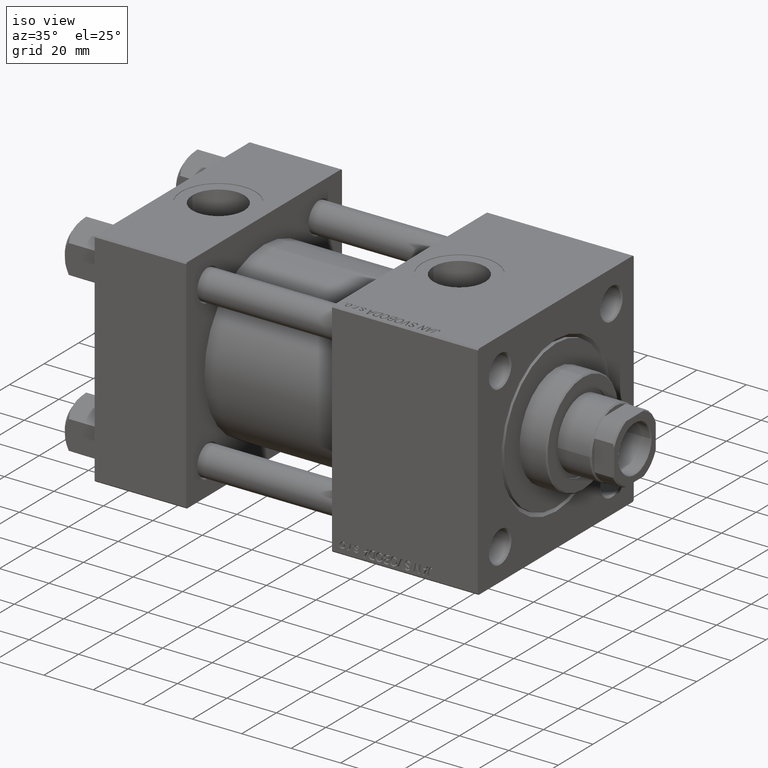
[diagram: clean part render]
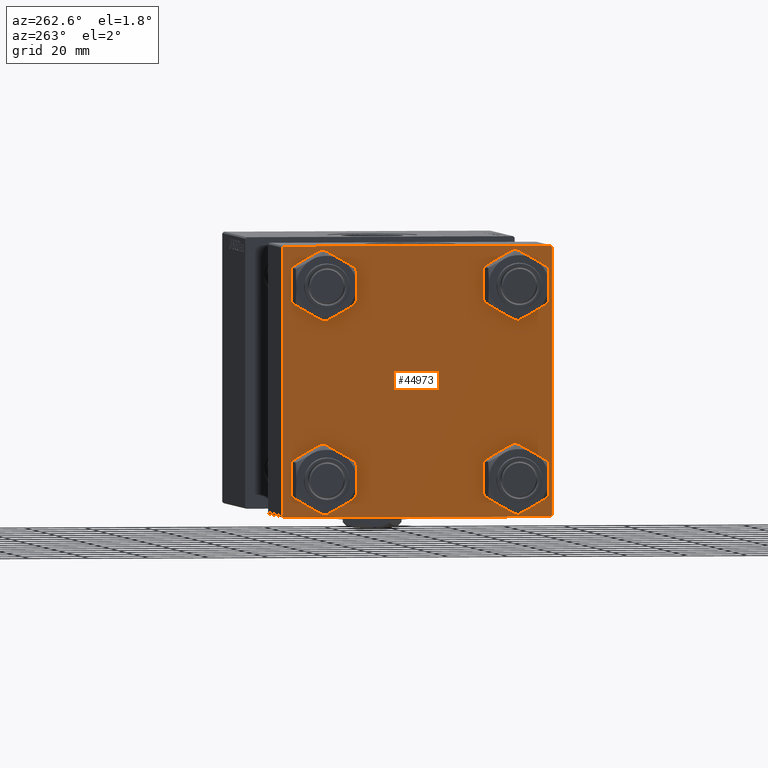
[diagram: tour spotlight — one face highlighted and labeled with its STEP entity id]
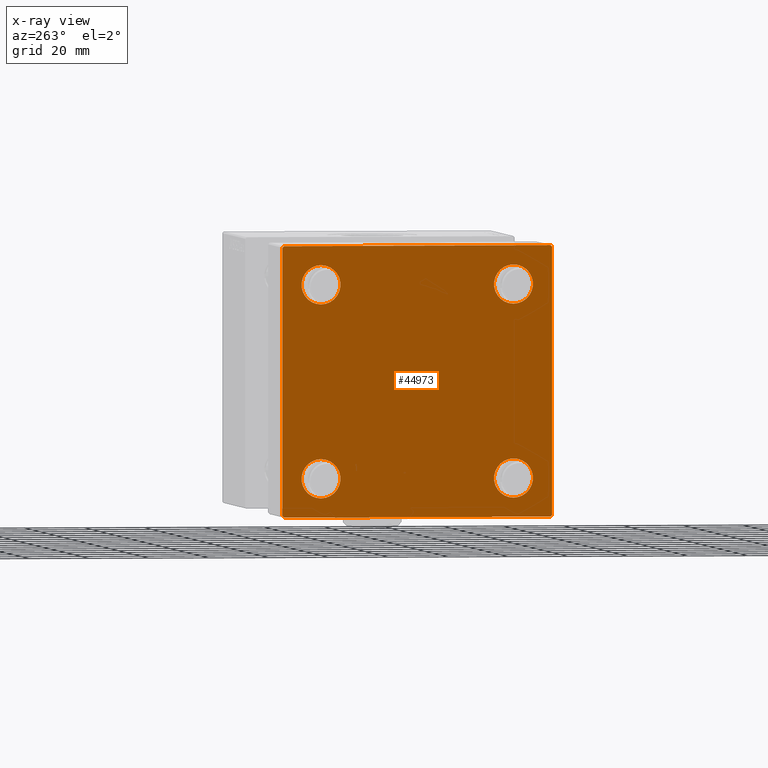
[diagram: x-ray of the same camera — body ghosted, this tour face saturated]
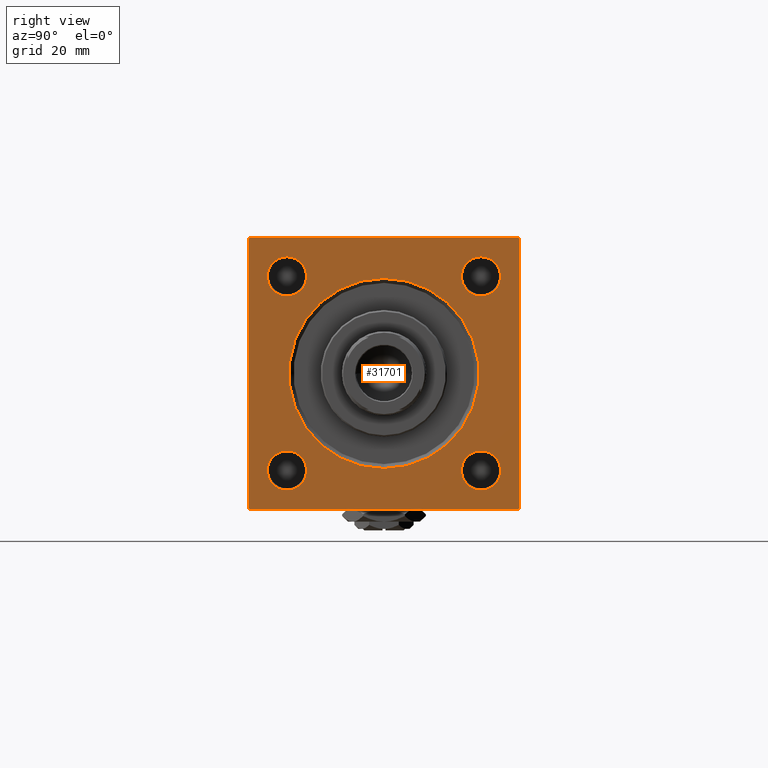
[diagram: tour spotlight — one face highlighted and labeled with its STEP entity id]
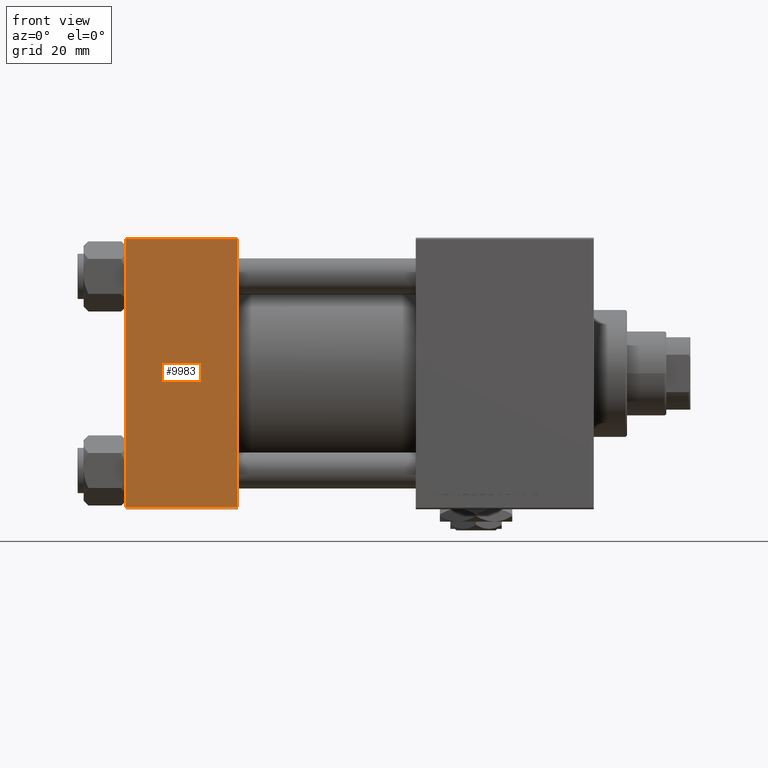
[diagram: tour spotlight — one face highlighted and labeled with its STEP entity id]
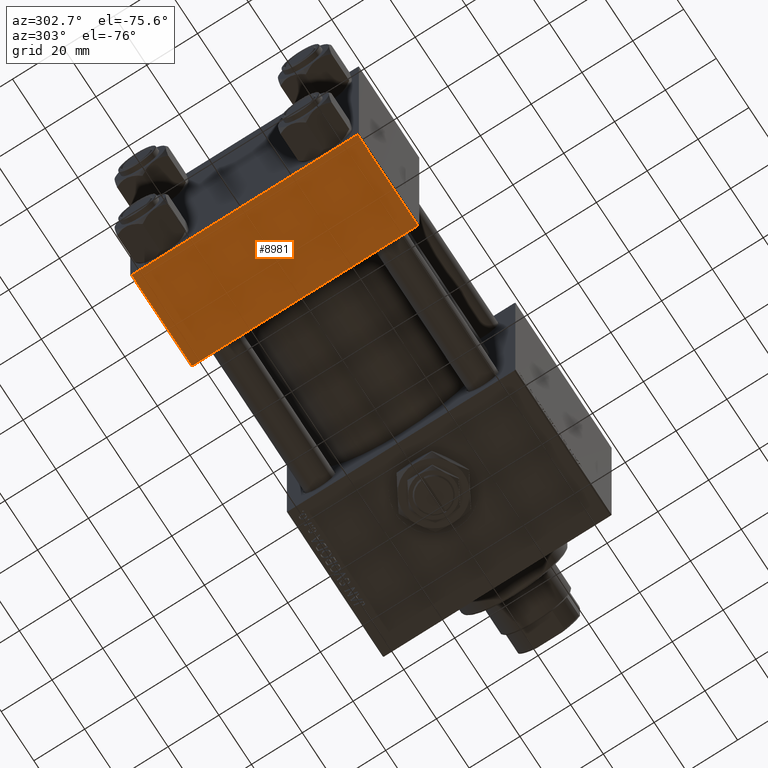
[diagram: tour spotlight — one face highlighted and labeled with its STEP entity id]
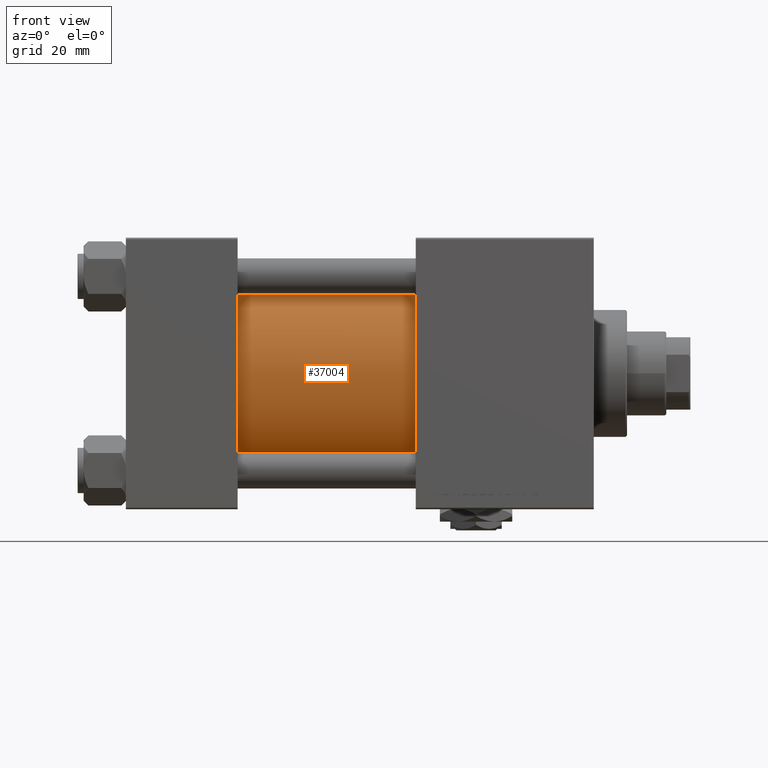
[diagram: tour spotlight — one face highlighted and labeled with its STEP entity id]
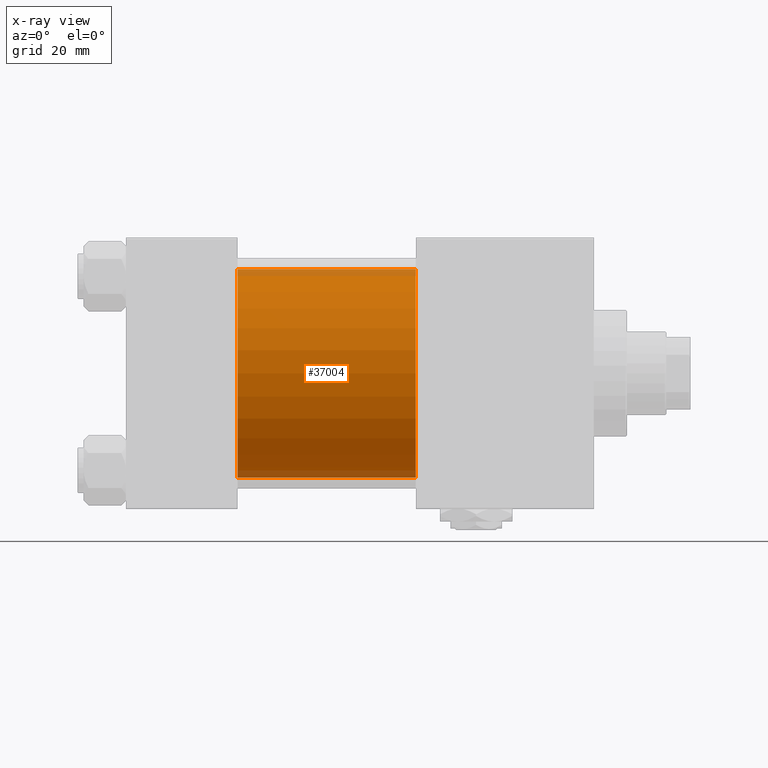
[diagram: x-ray of the same camera — body ghosted, this tour face saturated]
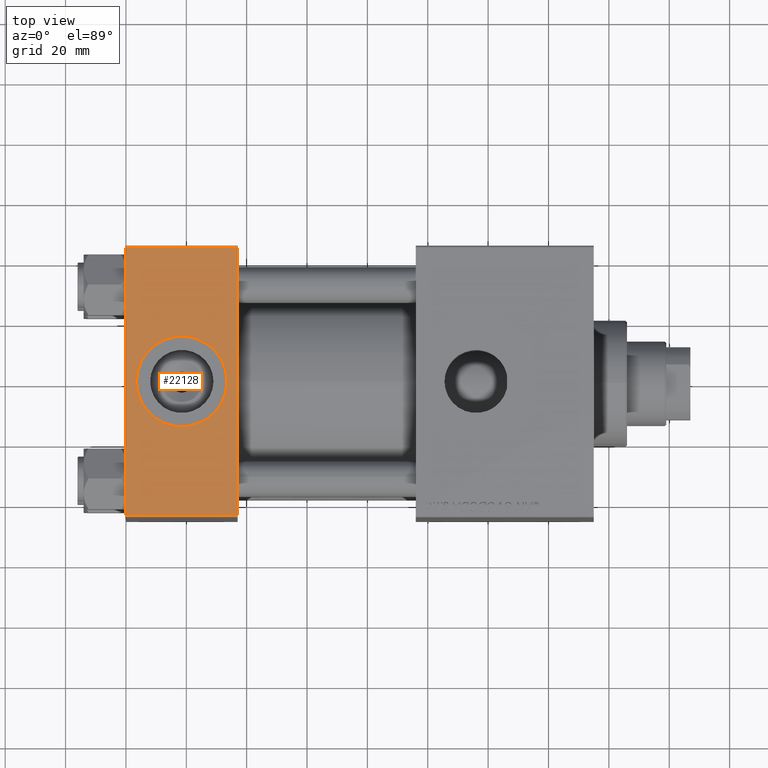
[diagram: tour spotlight — one face highlighted and labeled with its STEP entity id]
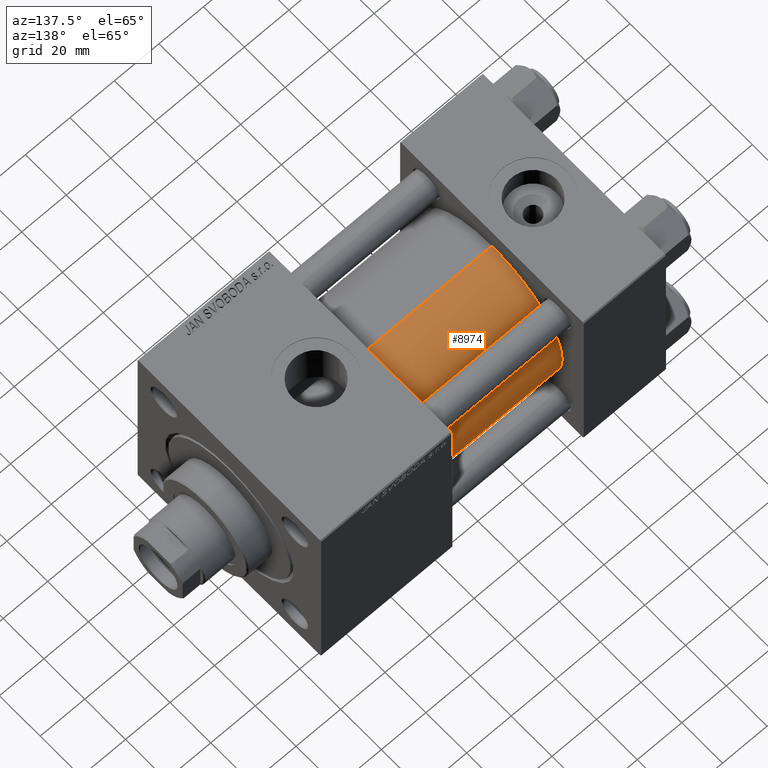
[diagram: tour spotlight — one face highlighted and labeled with its STEP entity id]
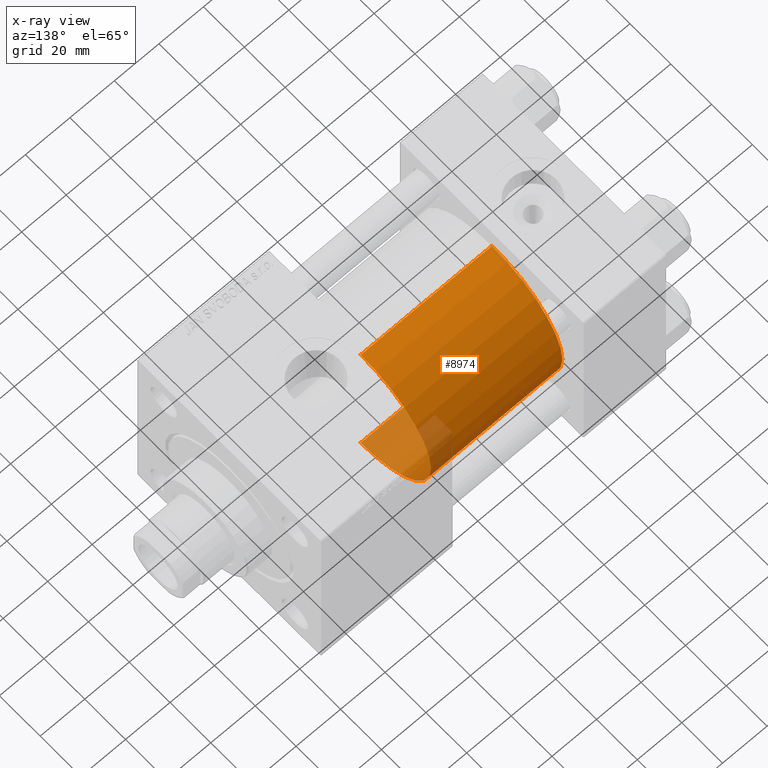
[diagram: x-ray of the same camera — body ghosted, this tour face saturated]
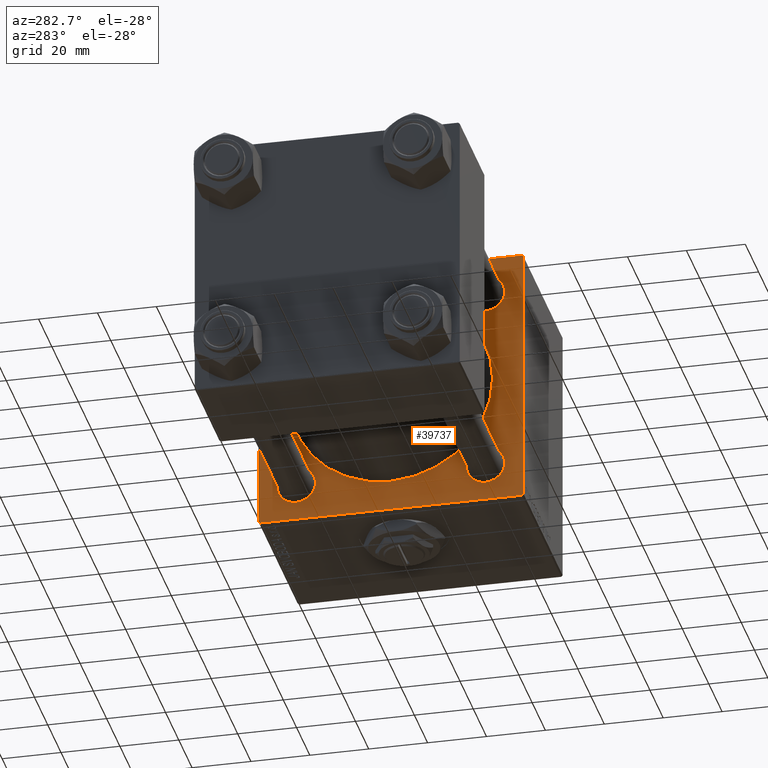
[diagram: tour spotlight — one face highlighted and labeled with its STEP entity id]
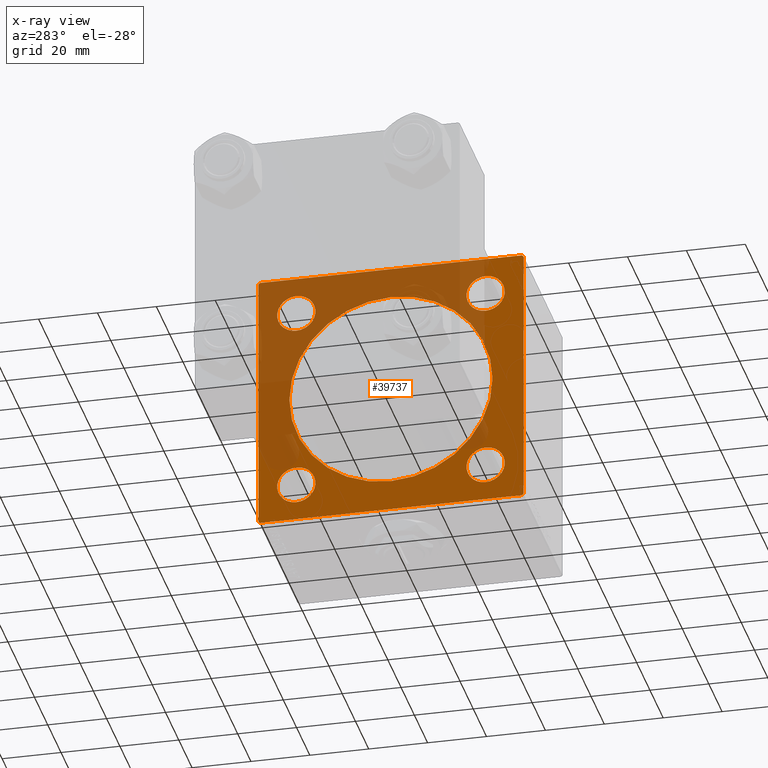
[diagram: x-ray of the same camera — body ghosted, this tour face saturated]
A machine part: a face-by-face anatomy tour. The part has 1196 B-rep faces; the first image is the clean iso view, then the 8 largest visible faces are spotlighted one at a time (largest first), each with its STEP entity span.

Face 1 — auxiliary view, entity #44973. An x-ray twin of the same camera follows (body ghosted, this face saturated) — the face is partly hidden behind the body. In plain terms, the highlighted planar face has unit normal (-1, 0, 0).
Definition (entity closure, byte-faithful):
#520 = CARTESIAN_POINT ( 'NONE',  ( 0.000000000000000000, 44.99999999999998579, -44.49999999999995737 ) ) ;
#527 = EDGE_CURVE ( 'NONE', #28159, #50384, #871, .T. ) ;
#625 = VERTEX_POINT ( 'NONE', #49431 ) ;
#871 = CIRCLE ( 'NONE', #5075, 6.499999999999977796 ) ;
#1161 = ORIENTED_EDGE ( 'NONE', *, *, #48069, .F. ) ;
#1240 = DIRECTION ( 'NONE',  ( 1.000000000000000000, -0.000000000000000000, 0.000000000000000000 ) ) ;
#1733 = EDGE_CURVE ( 'NONE', #33797, #49412, #28631, .T. ) ;
#2157 = FACE_BOUND ( 'NONE', #39334, .T. ) ;
#3975 = ORIENTED_EDGE ( 'NONE', *, *, #36909, .T. ) ;
#4246 = VERTEX_POINT ( 'NONE', #520 ) ;
#4467 = CARTESIAN_POINT ( 'NONE',  ( 0.000000000000000000, -32.14999999999997726, -32.15000000000001279 ) ) ;
#4829 = LINE ( 'NONE', #16667, #42617 ) ;
#5075 = AXIS2_PLACEMENT_3D ( 'NONE', #36822, #20013, #23942 ) ;
#5095 = DIRECTION ( 'NONE',  ( 0.000000000000000000, 0.000000000000000000, 1.000000000000000000 ) ) ;
#5159 = DIRECTION ( 'NONE',  ( -0.000000000000000000, 0.7071067811865425767, 0.7071067811865524577 ) ) ;
#5184 = AXIS2_PLACEMENT_3D ( 'NONE', #15188, #5619, #5095 ) ;
#5610 = DIRECTION ( 'NONE',  ( 0.000000000000000000, 0.7071067811865474617, -0.7071067811865474617 ) ) ;
#5619 = DIRECTION ( 'NONE',  ( 1.000000000000000000, -0.000000000000000000, 0.000000000000000000 ) ) ;
#6034 = CIRCLE ( 'NONE', #5184, 6.500000000000019540 ) ;
#6105 = FACE_BOUND ( 'NONE', #48691, .T. ) ;
#6367 = FACE_BOUND ( 'NONE', #42443, .T. ) ;
#6645 = VERTEX_POINT ( 'NONE', #24328 ) ;
#7608 = EDGE_CURVE ( 'NONE', #20918, #625, #45870, .T. ) ;
#7725 = CARTESIAN_POINT ( 'NONE',  ( 0.000000000000000000, 44.74999999999998579, -44.74999999999998579 ) ) ;
#7988 = LINE ( 'NONE', #7725, #40095 ) ;
#8429 = LINE ( 'NONE', #32605, #14513 ) ;
#8451 = VERTEX_POINT ( 'NONE', #45626 ) ;
#8698 = DIRECTION ( 'NONE',  ( 0.000000000000000000, -0.7071067811865474617, 0.7071067811865474617 ) ) ;
#8942 = VECTOR ( 'NONE', #27281, 1000.000000000000000 ) ;
#9758 = EDGE_CURVE ( 'NONE', #25667, #27745, #8429, .T. ) ;
#10335 = DIRECTION ( 'NONE',  ( 0.000000000000000000, 0.000000000000000000, 1.000000000000000000 ) ) ;
#11263 = LINE ( 'NONE', #14421, #8942 ) ;
#11629 = ORIENTED_EDGE ( 'NONE', *, *, #50768, .T. ) ;
#11642 = LINE ( 'NONE', #43163, #18811 ) ;
#12352 = CIRCLE ( 'NONE', #15692, 6.500000000000019540 ) ;
#13045 = ORIENTED_EDGE ( 'NONE', *, *, #28941, .T. ) ;
#13364 = ORIENTED_EDGE ( 'NONE', *, *, #527, .T. ) ;
#13805 = DIRECTION ( 'NONE',  ( 0.000000000000000000, -1.000000000000000000, -1.541976423090495387E-16 ) ) ;
#13827 = CARTESIAN_POINT ( 'NONE',  ( -0.000000000000000000, -44.75000000000029843, 44.74999999999967315 ) ) ;
#14237 = CARTESIAN_POINT ( 'NONE',  ( 0.000000000000000000, 44.99999999999998579, 44.50000000000001421 ) ) ;
#14252 = PLANE ( 'NONE',  #41928 ) ;
#14400 = DIRECTION ( 'NONE',  ( 0.000000000000000000, 0.000000000000000000, 1.000000000000000000 ) ) ;
#14421 = CARTESIAN_POINT ( 'NONE',  ( 0.000000000000000000, 44.99999999999998579, 45.00000000000001421 ) ) ;
#14513 = VECTOR ( 'NONE', #8698, 1000.000000000000114 ) ;
#14526 = EDGE_LOOP ( 'NONE', ( #30102, #13364 ) ) ;
#14711 = CARTESIAN_POINT ( 'NONE',  ( 0.000000000000000000, 32.14999999999999147, -38.64999999999998437 ) ) ;
#15025 = DIRECTION ( 'NONE',  ( 0.000000000000000000, 7.709882115452476934E-17, -1.000000000000000000 ) ) ;
#15188 = CARTESIAN_POINT ( 'NONE',  ( 0.000000000000000000, -32.14999999999997726, 32.15000000000001279 ) ) ;
#15692 = AXIS2_PLACEMENT_3D ( 'NONE', #37237, #1240, #49322 ) ;
#16015 = VECTOR ( 'NONE', #13805, 1000.000000000000000 ) ;
#16667 = CARTESIAN_POINT ( 'NONE',  ( 0.000000000000000000, 44.74999999999999289, 44.74999999999999289 ) ) ;
#18034 = ORIENTED_EDGE ( 'NONE', *, *, #50469, .T. ) ;
#18200 = FACE_BOUND ( 'NONE', #14526, .T. ) ;
#18268 = EDGE_CURVE ( 'NONE', #43011, #4246, #11263, .T. ) ;
#18570 = CIRCLE ( 'NONE', #25323, 6.499999999999977796 ) ;
#18742 = DIRECTION ( 'NONE',  ( 1.000000000000000000, -0.000000000000000000, 0.000000000000000000 ) ) ;
#18811 = VECTOR ( 'NONE', #47625, 1000.000000000000000 ) ;
#18959 = CARTESIAN_POINT ( 'NONE',  ( 0.000000000000000000, 44.49999999999998579, -44.99999999999998579 ) ) ;
#20013 = DIRECTION ( 'NONE',  ( 1.000000000000000000, -0.000000000000000000, 0.000000000000000000 ) ) ;
#20918 = VERTEX_POINT ( 'NONE', #40904 ) ;
#21260 = DIRECTION ( 'NONE',  ( 0.000000000000000000, 0.000000000000000000, 1.000000000000000000 ) ) ;
#22389 = CARTESIAN_POINT ( 'NONE',  ( 0.000000000000000000, 0.000000000000000000, 0.000000000000000000 ) ) ;
#22651 = AXIS2_PLACEMENT_3D ( 'NONE', #38255, #45644, #37752 ) ;
#22708 = CARTESIAN_POINT ( 'NONE',  ( 0.000000000000000000, -45.00000000000000000, -44.49999999999995737 ) ) ;
#23117 = ORIENTED_EDGE ( 'NONE', *, *, #35167, .T. ) ;
#23942 = DIRECTION ( 'NONE',  ( 0.000000000000000000, 0.000000000000000000, 1.000000000000000000 ) ) ;
#24328 = CARTESIAN_POINT ( 'NONE',  ( 0.000000000000000000, -32.14999999999997726, -38.64999999999999147 ) ) ;
#24589 = ORIENTED_EDGE ( 'NONE', *, *, #30080, .T. ) ;
#24814 = CARTESIAN_POINT ( 'NONE',  ( 0.000000000000000000, 32.14999999999999147, 32.15000000000000568 ) ) ;
#24833 = CARTESIAN_POINT ( 'NONE',  ( 0.000000000000000000, 32.14999999999999147, -25.65000000000002700 ) ) ;
#25129 = VERTEX_POINT ( 'NONE', #38705 ) ;
#25323 = AXIS2_PLACEMENT_3D ( 'NONE', #27543, #49881, #14400 ) ;
#25667 = VERTEX_POINT ( 'NONE', #50787 ) ;
#25952 = ORIENTED_EDGE ( 'NONE', *, *, #9758, .T. ) ;
#27281 = DIRECTION ( 'NONE',  ( 0.000000000000000000, 0.000000000000000000, -1.000000000000000000 ) ) ;
#27356 = CARTESIAN_POINT ( 'NONE',  ( 0.000000000000000000, -45.00000000000000711, 45.00000000000000000 ) ) ;
#27543 = CARTESIAN_POINT ( 'NONE',  ( 0.000000000000000000, -32.14999999999997726, -32.15000000000001279 ) ) ;
#27745 = VERTEX_POINT ( 'NONE', #22708 ) ;
#28159 = VERTEX_POINT ( 'NONE', #14711 ) ;
#28631 = CIRCLE ( 'NONE', #33670, 6.499999999999977796 ) ;
#28645 = DIRECTION ( 'NONE',  ( 1.000000000000000000, -0.000000000000000000, 0.000000000000000000 ) ) ;
#28941 = EDGE_CURVE ( 'NONE', #36771, #25667, #11642, .T. ) ;
#29144 = VERTEX_POINT ( 'NONE', #51489 ) ;
#29249 = CIRCLE ( 'NONE', #49380, 6.499999999999977796 ) ;
#30080 = EDGE_CURVE ( 'NONE', #8451, #6645, #31457, .T. ) ;
#30102 = ORIENTED_EDGE ( 'NONE', *, *, #47140, .T. ) ;
#30281 = DIRECTION ( 'NONE',  ( -1.000000000000000000, 0.000000000000000000, -0.000000000000000000 ) ) ;
#30403 = CARTESIAN_POINT ( 'NONE',  ( 0.000000000000000000, 32.14999999999999147, 25.65000000000002700 ) ) ;
#30461 = CARTESIAN_POINT ( 'NONE',  ( 0.000000000000000000, 44.49999999999998579, 45.00000000000001421 ) ) ;
#30783 = LINE ( 'NONE', #27356, #46168 ) ;
#31457 = CIRCLE ( 'NONE', #50746, 6.499999999999977796 ) ;
#32605 = CARTESIAN_POINT ( 'NONE',  ( 0.000000000000000000, -44.74999999999998579, -44.74999999999998579 ) ) ;
#33670 = AXIS2_PLACEMENT_3D ( 'NONE', #24814, #18742, #10335 ) ;
#33797 = VERTEX_POINT ( 'NONE', #45350 ) ;
#35167 = EDGE_CURVE ( 'NONE', #29144, #25129, #12352, .T. ) ;
#36771 = VERTEX_POINT ( 'NONE', #18959 ) ;
#36822 = CARTESIAN_POINT ( 'NONE',  ( 0.000000000000000000, 32.14999999999999147, -32.15000000000000568 ) ) ;
#36909 = EDGE_CURVE ( 'NONE', #4246, #36771, #7988, .T. ) ;
#37072 = EDGE_CURVE ( 'NONE', #48322, #43011, #4829, .T. ) ;
#37237 = CARTESIAN_POINT ( 'NONE',  ( 0.000000000000000000, -32.14999999999997726, 32.15000000000001279 ) ) ;
#37460 = EDGE_CURVE ( 'NONE', #49412, #33797, #29249, .T. ) ;
#37752 = DIRECTION ( 'NONE',  ( 0.000000000000000000, 0.000000000000000000, 1.000000000000000000 ) ) ;
#38077 = VECTOR ( 'NONE', #5159, 1000.000000000000114 ) ;
#38101 = ORIENTED_EDGE ( 'NONE', *, *, #7608, .T. ) ;
#38255 = CARTESIAN_POINT ( 'NONE',  ( 0.000000000000000000, 32.14999999999999147, -32.15000000000000568 ) ) ;
#38671 = ORIENTED_EDGE ( 'NONE', *, *, #37072, .T. ) ;
#38705 = CARTESIAN_POINT ( 'NONE',  ( 0.000000000000000000, -32.14999999999997726, 25.64999999999999147 ) ) ;
#38955 = EDGE_LOOP ( 'NONE', ( #42702, #3975, #13045, #25952, #1161, #38101, #39964, #38671 ) ) ;
#39334 = EDGE_LOOP ( 'NONE', ( #24589, #18034 ) ) ;
#39778 = DIRECTION ( 'NONE',  ( -0.000000000000000000, -0.7071067811865474617, -0.7071067811865474617 ) ) ;
#39964 = ORIENTED_EDGE ( 'NONE', *, *, #48726, .F. ) ;
#40095 = VECTOR ( 'NONE', #39778, 1000.000000000000114 ) ;
#40904 = CARTESIAN_POINT ( 'NONE',  ( 0.000000000000000000, -45.00000000000000711, 44.49999999999997158 ) ) ;
#41897 = CARTESIAN_POINT ( 'NONE',  ( 0.000000000000000000, 44.99999999999998579, 45.00000000000001421 ) ) ;
#41928 = AXIS2_PLACEMENT_3D ( 'NONE', #22389, #30281, #46294 ) ;
#42443 = EDGE_LOOP ( 'NONE', ( #50309, #47088 ) ) ;
#42617 = VECTOR ( 'NONE', #5610, 1000.000000000000114 ) ;
#42702 = ORIENTED_EDGE ( 'NONE', *, *, #18268, .T. ) ;
#43011 = VERTEX_POINT ( 'NONE', #14237 ) ;
#43163 = CARTESIAN_POINT ( 'NONE',  ( 0.000000000000000000, 44.99999999999998579, -44.99999999999998579 ) ) ;
#44663 = DIRECTION ( 'NONE',  ( 0.000000000000000000, 0.000000000000000000, 1.000000000000000000 ) ) ;
#44973 = ADVANCED_FACE ( 'NONE', ( #6105, #2157, #18200, #6367, #50227 ), #14252, .T. ) ;
#45316 = CIRCLE ( 'NONE', #22651, 6.499999999999977796 ) ;
#45350 = CARTESIAN_POINT ( 'NONE',  ( 0.000000000000000000, 32.14999999999999147, 38.64999999999999147 ) ) ;
#45626 = CARTESIAN_POINT ( 'NONE',  ( 0.000000000000000000, -32.14999999999997726, -25.65000000000003411 ) ) ;
#45644 = DIRECTION ( 'NONE',  ( 1.000000000000000000, -0.000000000000000000, 0.000000000000000000 ) ) ;
#45870 = LINE ( 'NONE', #13827, #38077 ) ;
#46168 = VECTOR ( 'NONE', #15025, 1000.000000000000000 ) ;
#46294 = DIRECTION ( 'NONE',  ( -0.000000000000000000, 0.000000000000000000, 1.000000000000000000 ) ) ;
#47088 = ORIENTED_EDGE ( 'NONE', *, *, #37460, .T. ) ;
#47140 = EDGE_CURVE ( 'NONE', #50384, #28159, #45316, .T. ) ;
#47625 = DIRECTION ( 'NONE',  ( 0.000000000000000000, -1.000000000000000000, -1.541976423090495633E-16 ) ) ;
#48069 = EDGE_CURVE ( 'NONE', #20918, #27745, #30783, .T. ) ;
#48322 = VERTEX_POINT ( 'NONE', #30461 ) ;
#48691 = EDGE_LOOP ( 'NONE', ( #23117, #11629 ) ) ;
#48726 = EDGE_CURVE ( 'NONE', #48322, #625, #48742, .T. ) ;
#48742 = LINE ( 'NONE', #41897, #16015 ) ;
#49322 = DIRECTION ( 'NONE',  ( 0.000000000000000000, 0.000000000000000000, 1.000000000000000000 ) ) ;
#49380 = AXIS2_PLACEMENT_3D ( 'NONE', #50119, #49876, #21260 ) ;
#49412 = VERTEX_POINT ( 'NONE', #30403 ) ;
#49431 = CARTESIAN_POINT ( 'NONE',  ( 0.000000000000000000, -44.49999999999995737, 45.00000000000000000 ) ) ;
#49876 = DIRECTION ( 'NONE',  ( 1.000000000000000000, -0.000000000000000000, 0.000000000000000000 ) ) ;
#49881 = DIRECTION ( 'NONE',  ( 1.000000000000000000, -0.000000000000000000, 0.000000000000000000 ) ) ;
#50119 = CARTESIAN_POINT ( 'NONE',  ( 0.000000000000000000, 32.14999999999999147, 32.15000000000000568 ) ) ;
#50227 = FACE_OUTER_BOUND ( 'NONE', #38955, .T. ) ;
#50309 = ORIENTED_EDGE ( 'NONE', *, *, #1733, .T. ) ;
#50384 = VERTEX_POINT ( 'NONE', #24833 ) ;
#50469 = EDGE_CURVE ( 'NONE', #6645, #8451, #18570, .T. ) ;
#50746 = AXIS2_PLACEMENT_3D ( 'NONE', #4467, #28645, #44663 ) ;
#50768 = EDGE_CURVE ( 'NONE', #25129, #29144, #6034, .T. ) ;
#50787 = CARTESIAN_POINT ( 'NONE',  ( 0.000000000000000000, -44.49999999999995737, -45.00000000000000000 ) ) ;
#51489 = CARTESIAN_POINT ( 'NONE',  ( 0.000000000000000000, -32.14999999999997726, 38.65000000000003411 ) ) ;

Face 2 — right view, entity #31701. In plain terms, the highlighted planar face has unit normal (-1, 0, 0).
Definition (entity closure, byte-faithful):
#175 = DIRECTION ( 'NONE',  ( 0.000000000000000000, 0.000000000000000000, 1.000000000000000000 ) ) ;
#623 = VERTEX_POINT ( 'NONE', #1855 ) ;
#1395 = LINE ( 'NONE', #28725, #39914 ) ;
#1800 = CIRCLE ( 'NONE', #37876, 6.500000000000026645 ) ;
#1855 = CARTESIAN_POINT ( 'NONE',  ( 155.0000000000000000, 45.00000000000001421, -44.49999999999997158 ) ) ;
#2707 = DIRECTION ( 'NONE',  ( 0.000000000000000000, 0.000000000000000000, 1.000000000000000000 ) ) ;
#2948 = EDGE_CURVE ( 'NONE', #31714, #20908, #16038, .T. ) ;
#3252 = FACE_BOUND ( 'NONE', #25436, .T. ) ;
#4199 = DIRECTION ( 'NONE',  ( 0.000000000000000000, -1.000000000000000000, -1.541976423090495140E-16 ) ) ;
#5103 = CIRCLE ( 'NONE', #30271, 6.500000000000033751 ) ;
#5862 = VERTEX_POINT ( 'NONE', #47387 ) ;
#6665 = DIRECTION ( 'NONE',  ( -1.000000000000000000, -0.000000000000000000, -0.000000000000000000 ) ) ;
#6952 = DIRECTION ( 'NONE',  ( -1.000000000000000000, -0.000000000000000000, -0.000000000000000000 ) ) ;
#7213 = ORIENTED_EDGE ( 'NONE', *, *, #12817, .T. ) ;
#7305 = CARTESIAN_POINT ( 'NONE',  ( 155.0000000000000000, 32.14999999999999147, -32.15000000000000568 ) ) ;
#7334 = LINE ( 'NONE', #26518, #42613 ) ;
#7472 = VERTEX_POINT ( 'NONE', #51660 ) ;
#7533 = EDGE_LOOP ( 'NONE', ( #44718, #33777, #37965, #38618, #29365, #7213, #38529, #28217 ) ) ;
#7603 = ORIENTED_EDGE ( 'NONE', *, *, #34977, .T. ) ;
#8505 = DIRECTION ( 'NONE',  ( -1.000000000000000000, -0.000000000000000000, -0.000000000000000000 ) ) ;
#8991 = CIRCLE ( 'NONE', #13192, 31.50000000000000000 ) ;
#9130 = DIRECTION ( 'NONE',  ( 0.000000000000000000, 0.000000000000000000, 1.000000000000000000 ) ) ;
#9760 = CARTESIAN_POINT ( 'NONE',  ( 155.0000000000000000, -32.15000000000001279, -32.15000000000000568 ) ) ;
#9918 = AXIS2_PLACEMENT_3D ( 'NONE', #17573, #34094, #45151 ) ;
#10634 = VECTOR ( 'NONE', #41682, 1000.000000000000000 ) ;
#10641 = DIRECTION ( 'NONE',  ( 0.000000000000000000, 0.000000000000000000, 1.000000000000000000 ) ) ;
#10791 = EDGE_LOOP ( 'NONE', ( #19821, #38949 ) ) ;
#10890 = FACE_BOUND ( 'NONE', #10791, .T. ) ;
#11155 = ORIENTED_EDGE ( 'NONE', *, *, #49691, .T. ) ;
#11406 = FACE_BOUND ( 'NONE', #22077, .T. ) ;
#11653 = CARTESIAN_POINT ( 'NONE',  ( 155.0000000000000000, -45.00000000000000000, 44.49999999999995737 ) ) ;
#11762 = EDGE_CURVE ( 'NONE', #40356, #16521, #41461, .T. ) ;
#12817 = EDGE_CURVE ( 'NONE', #42493, #31714, #27478, .T. ) ;
#12893 = CARTESIAN_POINT ( 'NONE',  ( 155.0000000000000000, -44.49999999999992895, -45.00000000000000000 ) ) ;
#12955 = CARTESIAN_POINT ( 'NONE',  ( 155.0000000000000000, 3.857637417314162689E-15, 31.50000000000000000 ) ) ;
#13192 = AXIS2_PLACEMENT_3D ( 'NONE', #50322, #18294, #9130 ) ;
#13369 = CARTESIAN_POINT ( 'NONE',  ( 155.0000000000000000, 44.50000000000001421, -45.00000000000000000 ) ) ;
#13579 = LINE ( 'NONE', #29612, #10634 ) ;
#13587 = EDGE_CURVE ( 'NONE', #16556, #42255, #32861, .T. ) ;
#14773 = EDGE_CURVE ( 'NONE', #30528, #40383, #34847, .T. ) ;
#15488 = DIRECTION ( 'NONE',  ( -0.000000000000000000, 0.7071067811865474617, 0.7071067811865474617 ) ) ;
#16038 = LINE ( 'NONE', #35477, #46283 ) ;
#16521 = VERTEX_POINT ( 'NONE', #25170 ) ;
#16556 = VERTEX_POINT ( 'NONE', #33063 ) ;
#17047 = VERTEX_POINT ( 'NONE', #27166 ) ;
#17573 = CARTESIAN_POINT ( 'NONE',  ( 155.0000000000000000, 32.14999999999999147, -32.15000000000000568 ) ) ;
#17706 = VERTEX_POINT ( 'NONE', #39546 ) ;
#17807 = CARTESIAN_POINT ( 'NONE',  ( 155.0000000000000000, -32.14999999999999147, 38.65000000000002700 ) ) ;
#17941 = AXIS2_PLACEMENT_3D ( 'NONE', #48431, #8505, #36619 ) ;
#18294 = DIRECTION ( 'NONE',  ( -1.000000000000000000, -0.000000000000000000, -0.000000000000000000 ) ) ;
#18897 = CARTESIAN_POINT ( 'NONE',  ( 155.0000000000000000, 45.00000000000001421, 44.49999999999997158 ) ) ;
#19030 = FACE_BOUND ( 'NONE', #30351, .T. ) ;
#19292 = PLANE ( 'NONE',  #23965 ) ;
#19806 = FACE_OUTER_BOUND ( 'NONE', #7533, .T. ) ;
#19821 = ORIENTED_EDGE ( 'NONE', *, *, #23075, .T. ) ;
#20908 = VERTEX_POINT ( 'NONE', #20946 ) ;
#20946 = CARTESIAN_POINT ( 'NONE',  ( 155.0000000000000000, -44.49999999999994316, 44.99999999999998579 ) ) ;
#21017 = AXIS2_PLACEMENT_3D ( 'NONE', #51559, #6665, #2707 ) ;
#21459 = EDGE_LOOP ( 'NONE', ( #26480, #45159 ) ) ;
#22077 = EDGE_LOOP ( 'NONE', ( #11155, #26843 ) ) ;
#22360 = AXIS2_PLACEMENT_3D ( 'NONE', #40902, #23829, #175 ) ;
#23075 = EDGE_CURVE ( 'NONE', #7472, #34534, #36358, .T. ) ;
#23327 = DIRECTION ( 'NONE',  ( -1.000000000000000000, -0.000000000000000000, -0.000000000000000000 ) ) ;
#23435 = EDGE_CURVE ( 'NONE', #36373, #16556, #51406, .T. ) ;
#23829 = DIRECTION ( 'NONE',  ( -1.000000000000000000, -0.000000000000000000, -0.000000000000000000 ) ) ;
#23965 = AXIS2_PLACEMENT_3D ( 'NONE', #47131, #43189, #35301 ) ;
#24080 = CIRCLE ( 'NONE', #25781, 6.500000000000033751 ) ;
#25170 = CARTESIAN_POINT ( 'NONE',  ( 155.0000000000000000, 0.000000000000000000, -31.50000000000000000 ) ) ;
#25436 = EDGE_LOOP ( 'NONE', ( #28608, #7603 ) ) ;
#25781 = AXIS2_PLACEMENT_3D ( 'NONE', #7305, #23327, #51417 ) ;
#25936 = DIRECTION ( 'NONE',  ( -1.000000000000000000, -0.000000000000000000, -0.000000000000000000 ) ) ;
#26480 = ORIENTED_EDGE ( 'NONE', *, *, #35129, .T. ) ;
#26518 = CARTESIAN_POINT ( 'NONE',  ( 155.0000000000000000, 45.00000000000001421, -44.50000000000000000 ) ) ;
#26843 = ORIENTED_EDGE ( 'NONE', *, *, #34122, .T. ) ;
#27092 = DIRECTION ( 'NONE',  ( 0.000000000000000000, 0.000000000000000000, -1.000000000000000000 ) ) ;
#27166 = CARTESIAN_POINT ( 'NONE',  ( 155.0000000000000000, 32.14999999999999147, -25.64999999999997016 ) ) ;
#27173 = CARTESIAN_POINT ( 'NONE',  ( 155.0000000000000000, 32.14999999999999147, 32.15000000000000568 ) ) ;
#27478 = LINE ( 'NONE', #51633, #46513 ) ;
#27807 = CARTESIAN_POINT ( 'NONE',  ( 155.0000000000000000, 32.14999999999999147, -38.65000000000004832 ) ) ;
#28217 = ORIENTED_EDGE ( 'NONE', *, *, #31898, .T. ) ;
#28608 = ORIENTED_EDGE ( 'NONE', *, *, #41967, .T. ) ;
#28725 = CARTESIAN_POINT ( 'NONE',  ( 155.0000000000000000, -45.00000000000000000, 44.49999999999995737 ) ) ;
#28925 = DIRECTION ( 'NONE',  ( 0.000000000000000000, 0.7071067811865524577, -0.7071067811865426878 ) ) ;
#29254 = CARTESIAN_POINT ( 'NONE',  ( 155.0000000000000000, -32.14999999999999147, 25.64999999999995595 ) ) ;
#29365 = ORIENTED_EDGE ( 'NONE', *, *, #36693, .F. ) ;
#29612 = CARTESIAN_POINT ( 'NONE',  ( 155.0000000000000000, 45.00000000000001421, -45.00000000000000000 ) ) ;
#29672 = AXIS2_PLACEMENT_3D ( 'NONE', #9760, #41799, #42045 ) ;
#30233 = CIRCLE ( 'NONE', #21017, 6.500000000000033751 ) ;
#30271 = AXIS2_PLACEMENT_3D ( 'NONE', #33064, #25936, #49077 ) ;
#30351 = EDGE_LOOP ( 'NONE', ( #37018, #39854 ) ) ;
#30528 = VERTEX_POINT ( 'NONE', #17807 ) ;
#30872 = VECTOR ( 'NONE', #27092, 1000.000000000000000 ) ;
#31225 = DIRECTION ( 'NONE',  ( -1.000000000000000000, -0.000000000000000000, -0.000000000000000000 ) ) ;
#31471 = CARTESIAN_POINT ( 'NONE',  ( 155.0000000000000000, -45.00000000000000000, 44.99999999999998579 ) ) ;
#31701 = ADVANCED_FACE ( 'NONE', ( #11406, #19030, #10890, #3252, #35051, #19806 ), #19292, .F. ) ;
#31714 = VERTEX_POINT ( 'NONE', #51831 ) ;
#31898 = EDGE_CURVE ( 'NONE', #20908, #36373, #1395, .T. ) ;
#32297 = VECTOR ( 'NONE', #28925, 1000.000000000000000 ) ;
#32861 = LINE ( 'NONE', #12893, #32297 ) ;
#33063 = CARTESIAN_POINT ( 'NONE',  ( 155.0000000000000000, -44.99999999999999289, -44.49999999999991473 ) ) ;
#33064 = CARTESIAN_POINT ( 'NONE',  ( 155.0000000000000000, -32.15000000000001279, -32.15000000000000568 ) ) ;
#33777 = ORIENTED_EDGE ( 'NONE', *, *, #13587, .T. ) ;
#34094 = DIRECTION ( 'NONE',  ( -1.000000000000000000, -0.000000000000000000, -0.000000000000000000 ) ) ;
#34122 = EDGE_CURVE ( 'NONE', #17706, #5862, #45018, .T. ) ;
#34326 = EDGE_CURVE ( 'NONE', #50304, #42255, #13579, .T. ) ;
#34534 = VERTEX_POINT ( 'NONE', #42056 ) ;
#34847 = CIRCLE ( 'NONE', #48263, 6.500000000000033751 ) ;
#34977 = EDGE_CURVE ( 'NONE', #17047, #49235, #24080, .T. ) ;
#34978 = LINE ( 'NONE', #46802, #30872 ) ;
#35051 = FACE_BOUND ( 'NONE', #21459, .T. ) ;
#35129 = EDGE_CURVE ( 'NONE', #16521, #40356, #8991, .T. ) ;
#35301 = DIRECTION ( 'NONE',  ( -0.000000000000000000, 0.000000000000000000, 1.000000000000000000 ) ) ;
#35477 = CARTESIAN_POINT ( 'NONE',  ( 155.0000000000000000, 45.00000000000001421, 45.00000000000000000 ) ) ;
#36358 = CIRCLE ( 'NONE', #29672, 6.500000000000033751 ) ;
#36373 = VERTEX_POINT ( 'NONE', #11653 ) ;
#36619 = DIRECTION ( 'NONE',  ( 0.000000000000000000, 0.000000000000000000, 1.000000000000000000 ) ) ;
#36693 = EDGE_CURVE ( 'NONE', #42493, #623, #34978, .T. ) ;
#37018 = ORIENTED_EDGE ( 'NONE', *, *, #47501, .T. ) ;
#37876 = AXIS2_PLACEMENT_3D ( 'NONE', #27173, #6952, #10641 ) ;
#37965 = ORIENTED_EDGE ( 'NONE', *, *, #34326, .F. ) ;
#38529 = ORIENTED_EDGE ( 'NONE', *, *, #2948, .T. ) ;
#38618 = ORIENTED_EDGE ( 'NONE', *, *, #40804, .T. ) ;
#38793 = DIRECTION ( 'NONE',  ( 0.000000000000000000, -0.7071067811865474617, 0.7071067811865474617 ) ) ;
#38949 = ORIENTED_EDGE ( 'NONE', *, *, #48556, .T. ) ;
#39546 = CARTESIAN_POINT ( 'NONE',  ( 155.0000000000000000, 32.14999999999999147, 38.65000000000003411 ) ) ;
#39854 = ORIENTED_EDGE ( 'NONE', *, *, #14773, .T. ) ;
#39914 = VECTOR ( 'NONE', #44741, 1000.000000000000114 ) ;
#40128 = DIRECTION ( 'NONE',  ( 0.000000000000000000, 0.000000000000000000, 1.000000000000000000 ) ) ;
#40356 = VERTEX_POINT ( 'NONE', #12955 ) ;
#40383 = VERTEX_POINT ( 'NONE', #29254 ) ;
#40557 = VECTOR ( 'NONE', #47486, 1000.000000000000000 ) ;
#40804 = EDGE_CURVE ( 'NONE', #50304, #623, #7334, .T. ) ;
#40902 = CARTESIAN_POINT ( 'NONE',  ( 155.0000000000000000, 32.14999999999999147, 32.15000000000000568 ) ) ;
#41461 = CIRCLE ( 'NONE', #17941, 31.50000000000000000 ) ;
#41682 = DIRECTION ( 'NONE',  ( 0.000000000000000000, -1.000000000000000000, 0.000000000000000000 ) ) ;
#41793 = CIRCLE ( 'NONE', #9918, 6.500000000000033751 ) ;
#41799 = DIRECTION ( 'NONE',  ( -1.000000000000000000, -0.000000000000000000, -0.000000000000000000 ) ) ;
#41967 = EDGE_CURVE ( 'NONE', #49235, #17047, #41793, .T. ) ;
#42045 = DIRECTION ( 'NONE',  ( 0.000000000000000000, 0.000000000000000000, 1.000000000000000000 ) ) ;
#42056 = CARTESIAN_POINT ( 'NONE',  ( 155.0000000000000000, -32.15000000000001279, -25.64999999999997016 ) ) ;
#42255 = VERTEX_POINT ( 'NONE', #47145 ) ;
#42493 = VERTEX_POINT ( 'NONE', #18897 ) ;
#42613 = VECTOR ( 'NONE', #15488, 1000.000000000000114 ) ;
#43040 = CARTESIAN_POINT ( 'NONE',  ( 155.0000000000000000, -32.14999999999999147, 32.14999999999999147 ) ) ;
#43189 = DIRECTION ( 'NONE',  ( -1.000000000000000000, 0.000000000000000000, -0.000000000000000000 ) ) ;
#44718 = ORIENTED_EDGE ( 'NONE', *, *, #23435, .T. ) ;
#44741 = DIRECTION ( 'NONE',  ( -0.000000000000000000, -0.7071067811865474617, -0.7071067811865474617 ) ) ;
#45018 = CIRCLE ( 'NONE', #22360, 6.500000000000026645 ) ;
#45151 = DIRECTION ( 'NONE',  ( 0.000000000000000000, 0.000000000000000000, 1.000000000000000000 ) ) ;
#45159 = ORIENTED_EDGE ( 'NONE', *, *, #11762, .T. ) ;
#46283 = VECTOR ( 'NONE', #4199, 1000.000000000000000 ) ;
#46513 = VECTOR ( 'NONE', #38793, 1000.000000000000114 ) ;
#46802 = CARTESIAN_POINT ( 'NONE',  ( 155.0000000000000000, 45.00000000000001421, 45.00000000000000000 ) ) ;
#47131 = CARTESIAN_POINT ( 'NONE',  ( 155.0000000000000000, 0.000000000000000000, 0.000000000000000000 ) ) ;
#47145 = CARTESIAN_POINT ( 'NONE',  ( 155.0000000000000000, -44.49999999999990052, -45.00000000000000000 ) ) ;
#47387 = CARTESIAN_POINT ( 'NONE',  ( 155.0000000000000000, 32.14999999999999147, 25.64999999999997726 ) ) ;
#47486 = DIRECTION ( 'NONE',  ( 0.000000000000000000, 7.709882115452478166E-17, -1.000000000000000000 ) ) ;
#47501 = EDGE_CURVE ( 'NONE', #40383, #30528, #30233, .T. ) ;
#48263 = AXIS2_PLACEMENT_3D ( 'NONE', #43040, #31225, #40128 ) ;
#48431 = CARTESIAN_POINT ( 'NONE',  ( 155.0000000000000000, 0.000000000000000000, 0.000000000000000000 ) ) ;
#48556 = EDGE_CURVE ( 'NONE', #34534, #7472, #5103, .T. ) ;
#49077 = DIRECTION ( 'NONE',  ( 0.000000000000000000, 0.000000000000000000, 1.000000000000000000 ) ) ;
#49235 = VERTEX_POINT ( 'NONE', #27807 ) ;
#49691 = EDGE_CURVE ( 'NONE', #5862, #17706, #1800, .T. ) ;
#50304 = VERTEX_POINT ( 'NONE', #13369 ) ;
#50322 = CARTESIAN_POINT ( 'NONE',  ( 155.0000000000000000, 0.000000000000000000, 0.000000000000000000 ) ) ;
#51406 = LINE ( 'NONE', #31471, #40557 ) ;
#51417 = DIRECTION ( 'NONE',  ( 0.000000000000000000, 0.000000000000000000, 1.000000000000000000 ) ) ;
#51559 = CARTESIAN_POINT ( 'NONE',  ( 155.0000000000000000, -32.14999999999999147, 32.14999999999999147 ) ) ;
#51633 = CARTESIAN_POINT ( 'NONE',  ( 155.0000000000000000, 44.49999999999998579, 45.00000000000000000 ) ) ;
#51660 = CARTESIAN_POINT ( 'NONE',  ( 155.0000000000000000, -32.15000000000001279, -38.65000000000004832 ) ) ;
#51831 = CARTESIAN_POINT ( 'NONE',  ( 155.0000000000000000, 44.49999999999998579, 45.00000000000000000 ) ) ;

Face 3 — front view, entity #9983. In plain terms, the highlighted planar face has unit normal (0, 1, 0).
Definition (entity closure, byte-faithful):
#51 = LINE ( 'NONE', #32107, #49002 ) ;
#3741 = VECTOR ( 'NONE', #31377, 1000.000000000000000 ) ;
#5219 = CARTESIAN_POINT ( 'NONE',  ( 37.00000000000000000, -45.00000000000000000, -44.49999999999995737 ) ) ;
#6298 = PLANE ( 'NONE',  #43877 ) ;
#6825 = DIRECTION ( 'NONE',  ( -0.000000000000000000, 1.000000000000000000, 7.709882115452478166E-17 ) ) ;
#8018 = CARTESIAN_POINT ( 'NONE',  ( 37.00000000000000000, -45.00000000000000711, 44.49999999999997158 ) ) ;
#9882 = CARTESIAN_POINT ( 'NONE',  ( 37.00000000000000000, -45.00000000000000711, 44.49999999999997158 ) ) ;
#9983 = ADVANCED_FACE ( 'NONE', ( #42291 ), #6298, .F. ) ;
#10511 = CARTESIAN_POINT ( 'NONE',  ( 37.00000000000000000, -45.00000000000000711, 45.00000000000000000 ) ) ;
#11115 = ORIENTED_EDGE ( 'NONE', *, *, #24194, .F. ) ;
#11637 = DIRECTION ( 'NONE',  ( 0.000000000000000000, 7.709882115452476934E-17, -1.000000000000000000 ) ) ;
#12186 = EDGE_LOOP ( 'NONE', ( #31125, #33366, #11115, #40443 ) ) ;
#13950 = EDGE_CURVE ( 'NONE', #27745, #33276, #47134, .T. ) ;
#15025 = DIRECTION ( 'NONE',  ( 0.000000000000000000, 7.709882115452476934E-17, -1.000000000000000000 ) ) ;
#17596 = VECTOR ( 'NONE', #31420, 1000.000000000000000 ) ;
#20918 = VERTEX_POINT ( 'NONE', #40904 ) ;
#21934 = EDGE_CURVE ( 'NONE', #25569, #20918, #39810, .T. ) ;
#22708 = CARTESIAN_POINT ( 'NONE',  ( 0.000000000000000000, -45.00000000000000000, -44.49999999999995737 ) ) ;
#22843 = DIRECTION ( 'NONE',  ( 0.000000000000000000, -7.709882115452478166E-17, 1.000000000000000000 ) ) ;
#24194 = EDGE_CURVE ( 'NONE', #25569, #33276, #51, .T. ) ;
#25569 = VERTEX_POINT ( 'NONE', #9882 ) ;
#27356 = CARTESIAN_POINT ( 'NONE',  ( 0.000000000000000000, -45.00000000000000711, 45.00000000000000000 ) ) ;
#27745 = VERTEX_POINT ( 'NONE', #22708 ) ;
#30783 = LINE ( 'NONE', #27356, #46168 ) ;
#31125 = ORIENTED_EDGE ( 'NONE', *, *, #48069, .T. ) ;
#31377 = DIRECTION ( 'NONE',  ( 1.000000000000000000, 0.000000000000000000, 0.000000000000000000 ) ) ;
#31420 = DIRECTION ( 'NONE',  ( -1.000000000000000000, 0.000000000000000000, 0.000000000000000000 ) ) ;
#32107 = CARTESIAN_POINT ( 'NONE',  ( 37.00000000000000000, -45.00000000000000711, 45.00000000000000000 ) ) ;
#33276 = VERTEX_POINT ( 'NONE', #5219 ) ;
#33366 = ORIENTED_EDGE ( 'NONE', *, *, #13950, .T. ) ;
#39810 = LINE ( 'NONE', #8018, #17596 ) ;
#40443 = ORIENTED_EDGE ( 'NONE', *, *, #21934, .T. ) ;
#40904 = CARTESIAN_POINT ( 'NONE',  ( 0.000000000000000000, -45.00000000000000711, 44.49999999999997158 ) ) ;
#42291 = FACE_OUTER_BOUND ( 'NONE', #12186, .T. ) ;
#43877 = AXIS2_PLACEMENT_3D ( 'NONE', #10511, #6825, #22843 ) ;
#46168 = VECTOR ( 'NONE', #15025, 1000.000000000000000 ) ;
#47134 = LINE ( 'NONE', #50808, #3741 ) ;
#48069 = EDGE_CURVE ( 'NONE', #20918, #27745, #30783, .T. ) ;
#49002 = VECTOR ( 'NONE', #11637, 1000.000000000000000 ) ;
#50808 = CARTESIAN_POINT ( 'NONE',  ( 37.00000000000000000, -45.00000000000000000, -44.49999999999998579 ) ) ;

Face 4 — auxiliary view, entity #8981. In plain terms, the highlighted planar face has unit normal (0, 0, -1).
Definition (entity closure, byte-faithful):
#182 = LINE ( 'NONE', #4120, #24920 ) ;
#245 = ORIENTED_EDGE ( 'NONE', *, *, #28941, .F. ) ;
#712 = DIRECTION ( 'NONE',  ( 1.000000000000000000, 0.000000000000000000, 0.000000000000000000 ) ) ;
#3650 = VECTOR ( 'NONE', #14851, 1000.000000000000000 ) ;
#3977 = VERTEX_POINT ( 'NONE', #20620 ) ;
#4120 = CARTESIAN_POINT ( 'NONE',  ( 37.00000000000000000, 44.49999999999998579, -44.99999999999998579 ) ) ;
#8981 = ADVANCED_FACE ( 'NONE', ( #21808 ), #49406, .T. ) ;
#11642 = LINE ( 'NONE', #43163, #18811 ) ;
#13419 = DIRECTION ( 'NONE',  ( 0.000000000000000000, 1.541976423090495880E-16, -1.000000000000000000 ) ) ;
#13825 = EDGE_CURVE ( 'NONE', #18282, #25667, #30334, .T. ) ;
#14077 = CARTESIAN_POINT ( 'NONE',  ( 37.00000000000000000, 44.99999999999998579, -44.99999999999998579 ) ) ;
#14851 = DIRECTION ( 'NONE',  ( 0.000000000000000000, -1.000000000000000000, -1.541976423090495633E-16 ) ) ;
#15990 = ORIENTED_EDGE ( 'NONE', *, *, #35004, .T. ) ;
#18282 = VERTEX_POINT ( 'NONE', #38581 ) ;
#18811 = VECTOR ( 'NONE', #47625, 1000.000000000000000 ) ;
#18959 = CARTESIAN_POINT ( 'NONE',  ( 0.000000000000000000, 44.49999999999998579, -44.99999999999998579 ) ) ;
#20620 = CARTESIAN_POINT ( 'NONE',  ( 37.00000000000000000, 44.49999999999998579, -44.99999999999998579 ) ) ;
#21808 = FACE_OUTER_BOUND ( 'NONE', #36620, .T. ) ;
#22192 = DIRECTION ( 'NONE',  ( -1.000000000000000000, 0.000000000000000000, 0.000000000000000000 ) ) ;
#22783 = EDGE_CURVE ( 'NONE', #3977, #18282, #38753, .T. ) ;
#23885 = VECTOR ( 'NONE', #22192, 1000.000000000000000 ) ;
#24920 = VECTOR ( 'NONE', #712, 1000.000000000000000 ) ;
#25667 = VERTEX_POINT ( 'NONE', #50787 ) ;
#28653 = DIRECTION ( 'NONE',  ( 0.000000000000000000, 1.000000000000000000, 1.541976423090495880E-16 ) ) ;
#28941 = EDGE_CURVE ( 'NONE', #36771, #25667, #11642, .T. ) ;
#30334 = LINE ( 'NONE', #45853, #23885 ) ;
#35004 = EDGE_CURVE ( 'NONE', #36771, #3977, #182, .T. ) ;
#35561 = AXIS2_PLACEMENT_3D ( 'NONE', #40996, #13419, #28653 ) ;
#36620 = EDGE_LOOP ( 'NONE', ( #245, #15990, #48846, #38556 ) ) ;
#36771 = VERTEX_POINT ( 'NONE', #18959 ) ;
#38556 = ORIENTED_EDGE ( 'NONE', *, *, #13825, .T. ) ;
#38581 = CARTESIAN_POINT ( 'NONE',  ( 37.00000000000000000, -44.49999999999995737, -45.00000000000000000 ) ) ;
#38753 = LINE ( 'NONE', #14077, #3650 ) ;
#40996 = CARTESIAN_POINT ( 'NONE',  ( 37.00000000000000000, 44.99999999999998579, -44.99999999999998579 ) ) ;
#43163 = CARTESIAN_POINT ( 'NONE',  ( 0.000000000000000000, 44.99999999999998579, -44.99999999999998579 ) ) ;
#45853 = CARTESIAN_POINT ( 'NONE',  ( 0.000000000000000000, -44.49999999999998579, -45.00000000000000000 ) ) ;
#47625 = DIRECTION ( 'NONE',  ( 0.000000000000000000, -1.000000000000000000, -1.541976423090495633E-16 ) ) ;
#48846 = ORIENTED_EDGE ( 'NONE', *, *, #22783, .T. ) ;
#49406 = PLANE ( 'NONE',  #35561 ) ;
#50787 = CARTESIAN_POINT ( 'NONE',  ( 0.000000000000000000, -44.49999999999995737, -45.00000000000000000 ) ) ;

Face 5 — front view, entity #37004. An x-ray twin of the same camera follows (body ghosted, this face saturated) — the face is partly hidden behind the body. In plain terms, the highlighted cylindrical surface (partial cylindrical patch) has radius 34.5 mm, axis along (-1, -0, -0).
Definition (entity closure, byte-faithful):
#2285 = VERTEX_POINT ( 'NONE', #12863 ) ;
#3523 = DIRECTION ( 'NONE',  ( -1.000000000000000000, -0.000000000000000000, -0.000000000000000000 ) ) ;
#3627 = DIRECTION ( 'NONE',  ( 0.000000000000000000, 0.000000000000000000, -1.000000000000000000 ) ) ;
#4036 = CYLINDRICAL_SURFACE ( 'NONE', #49346, 34.50000000000000000 ) ;
#5803 = VERTEX_POINT ( 'NONE', #41640 ) ;
#6152 = CIRCLE ( 'NONE', #46436, 34.50000000000000000 ) ;
#7236 = EDGE_CURVE ( 'NONE', #5803, #28354, #6152, .T. ) ;
#8915 = EDGE_LOOP ( 'NONE', ( #45551, #13562, #24280, #12244 ) ) ;
#11015 = DIRECTION ( 'NONE',  ( 1.000000000000000000, 0.000000000000000000, 0.000000000000000000 ) ) ;
#12244 = ORIENTED_EDGE ( 'NONE', *, *, #7236, .T. ) ;
#12441 = EDGE_CURVE ( 'NONE', #13117, #2285, #12911, .T. ) ;
#12863 = CARTESIAN_POINT ( 'NONE',  ( 96.00000000000000000, 1.622946243093158675E-15, -34.50000000000000000 ) ) ;
#12911 = CIRCLE ( 'NONE', #48983, 34.50000000000000000 ) ;
#13117 = VERTEX_POINT ( 'NONE', #18249 ) ;
#13562 = ORIENTED_EDGE ( 'NONE', *, *, #12441, .F. ) ;
#16797 = CARTESIAN_POINT ( 'NONE',  ( 37.00000000000000000, -2.602085213965210642E-15, 0.000000000000000000 ) ) ;
#17321 = VECTOR ( 'NONE', #35605, 1000.000000000000000 ) ;
#17733 = EDGE_CURVE ( 'NONE', #13117, #5803, #35856, .T. ) ;
#18249 = CARTESIAN_POINT ( 'NONE',  ( 96.00000000000000000, -2.602085213965210642E-15, 34.50000000000000000 ) ) ;
#18964 = LINE ( 'NONE', #51764, #32190 ) ;
#19564 = DIRECTION ( 'NONE',  ( 0.000000000000000000, 0.000000000000000000, 1.000000000000000000 ) ) ;
#20072 = CARTESIAN_POINT ( 'NONE',  ( 96.00000000000000000, -2.602085213965210642E-15, 0.000000000000000000 ) ) ;
#20473 = DIRECTION ( 'NONE',  ( 0.000000000000000000, 0.000000000000000000, 1.000000000000000000 ) ) ;
#24280 = ORIENTED_EDGE ( 'NONE', *, *, #17733, .T. ) ;
#26910 = EDGE_CURVE ( 'NONE', #2285, #28354, #18964, .T. ) ;
#28236 = CARTESIAN_POINT ( 'NONE',  ( 96.00000000000000000, -2.602085213965210642E-15, 34.50000000000000000 ) ) ;
#28354 = VERTEX_POINT ( 'NONE', #43009 ) ;
#31501 = CARTESIAN_POINT ( 'NONE',  ( 96.00000000000000000, -2.602085213965210642E-15, 0.000000000000000000 ) ) ;
#32190 = VECTOR ( 'NONE', #47062, 1000.000000000000000 ) ;
#35605 = DIRECTION ( 'NONE',  ( -1.000000000000000000, -0.000000000000000000, -0.000000000000000000 ) ) ;
#35856 = LINE ( 'NONE', #28236, #17321 ) ;
#37004 = ADVANCED_FACE ( 'NONE', ( #39522 ), #4036, .T. ) ;
#39522 = FACE_OUTER_BOUND ( 'NONE', #8915, .T. ) ;
#41640 = CARTESIAN_POINT ( 'NONE',  ( 37.00000000000000000, -2.602085213965210642E-15, 34.50000000000000000 ) ) ;
#43009 = CARTESIAN_POINT ( 'NONE',  ( 37.00000000000000000, 1.622946243093158675E-15, -34.50000000000000000 ) ) ;
#44370 = DIRECTION ( 'NONE',  ( 1.000000000000000000, -0.000000000000000000, 0.000000000000000000 ) ) ;
#45551 = ORIENTED_EDGE ( 'NONE', *, *, #26910, .F. ) ;
#46436 = AXIS2_PLACEMENT_3D ( 'NONE', #16797, #44370, #20473 ) ;
#47062 = DIRECTION ( 'NONE',  ( -1.000000000000000000, -0.000000000000000000, -0.000000000000000000 ) ) ;
#48983 = AXIS2_PLACEMENT_3D ( 'NONE', #31501, #11015, #3627 ) ;
#49346 = AXIS2_PLACEMENT_3D ( 'NONE', #20072, #3523, #19564 ) ;
#51764 = CARTESIAN_POINT ( 'NONE',  ( 96.00000000000000000, 1.622946243093158675E-15, -34.50000000000000000 ) ) ;

Face 6 — top view, entity #22128. In plain terms, the highlighted planar face has unit normal (0, 0, -1).
Definition (entity closure, byte-faithful):
#625 = VERTEX_POINT ( 'NONE', #49431 ) ;
#646 = CIRCLE ( 'NONE', #684, 15.00000000000000355 ) ;
#684 = AXIS2_PLACEMENT_3D ( 'NONE', #6086, #45261, #38140 ) ;
#870 = EDGE_CURVE ( 'NONE', #625, #18083, #16925, .T. ) ;
#994 = CARTESIAN_POINT ( 'NONE',  ( 33.50000000000000000, -8.673617379884038628E-15, 45.00000000000000711 ) ) ;
#1108 = CIRCLE ( 'NONE', #3647, 15.00000000000000355 ) ;
#1154 = DIRECTION ( 'NONE',  ( 1.000000000000000000, 0.000000000000000000, 0.000000000000000000 ) ) ;
#2153 = VERTEX_POINT ( 'NONE', #3167 ) ;
#2440 = AXIS2_PLACEMENT_3D ( 'NONE', #8538, #24554, #36651 ) ;
#3167 = CARTESIAN_POINT ( 'NONE',  ( 3.499999999999997780, -6.836647181163008250E-15, 45.00000000000000711 ) ) ;
#3647 = AXIS2_PLACEMENT_3D ( 'NONE', #31354, #35033, #38713 ) ;
#5096 = CARTESIAN_POINT ( 'NONE',  ( 37.00000000000000000, 44.99999999999998579, 45.00000000000001421 ) ) ;
#6086 = CARTESIAN_POINT ( 'NONE',  ( 18.50000000000000000, -8.673617379884038628E-15, 45.00000000000000711 ) ) ;
#7610 = ORIENTED_EDGE ( 'NONE', *, *, #25681, .F. ) ;
#8538 = CARTESIAN_POINT ( 'NONE',  ( 37.00000000000000000, 44.99999999999998579, 45.00000000000001421 ) ) ;
#8679 = EDGE_CURVE ( 'NONE', #33429, #18083, #8791, .T. ) ;
#8791 = LINE ( 'NONE', #5096, #12084 ) ;
#9332 = VECTOR ( 'NONE', #1154, 1000.000000000000000 ) ;
#12084 = VECTOR ( 'NONE', #21652, 1000.000000000000000 ) ;
#13805 = DIRECTION ( 'NONE',  ( 0.000000000000000000, -1.000000000000000000, -1.541976423090495387E-16 ) ) ;
#13995 = EDGE_LOOP ( 'NONE', ( #7610, #21650 ) ) ;
#14341 = DIRECTION ( 'NONE',  ( -1.000000000000000000, 0.000000000000000000, 0.000000000000000000 ) ) ;
#14600 = LINE ( 'NONE', #21721, #28445 ) ;
#15171 = CARTESIAN_POINT ( 'NONE',  ( 37.00000000000000000, 44.49999999999998579, 45.00000000000001421 ) ) ;
#16015 = VECTOR ( 'NONE', #13805, 1000.000000000000000 ) ;
#16548 = VERTEX_POINT ( 'NONE', #994 ) ;
#16925 = LINE ( 'NONE', #24803, #9332 ) ;
#18083 = VERTEX_POINT ( 'NONE', #47818 ) ;
#19773 = EDGE_LOOP ( 'NONE', ( #37080, #45415, #39075, #27630 ) ) ;
#20362 = PLANE ( 'NONE',  #2440 ) ;
#21082 = EDGE_CURVE ( 'NONE', #33429, #48322, #14600, .T. ) ;
#21650 = ORIENTED_EDGE ( 'NONE', *, *, #36546, .F. ) ;
#21652 = DIRECTION ( 'NONE',  ( 0.000000000000000000, -1.000000000000000000, -1.541976423090495387E-16 ) ) ;
#21721 = CARTESIAN_POINT ( 'NONE',  ( 0.000000000000000000, 44.49999999999998579, 45.00000000000001421 ) ) ;
#22128 = ADVANCED_FACE ( 'NONE', ( #40319, #44522 ), #20362, .F. ) ;
#24554 = DIRECTION ( 'NONE',  ( 0.000000000000000000, 1.541976423090495633E-16, -1.000000000000000000 ) ) ;
#24803 = CARTESIAN_POINT ( 'NONE',  ( 37.00000000000000000, -44.49999999999998579, 45.00000000000000000 ) ) ;
#25681 = EDGE_CURVE ( 'NONE', #16548, #2153, #1108, .T. ) ;
#27630 = ORIENTED_EDGE ( 'NONE', *, *, #21082, .T. ) ;
#28445 = VECTOR ( 'NONE', #14341, 1000.000000000000000 ) ;
#30461 = CARTESIAN_POINT ( 'NONE',  ( 0.000000000000000000, 44.49999999999998579, 45.00000000000001421 ) ) ;
#31354 = CARTESIAN_POINT ( 'NONE',  ( 18.50000000000000000, -8.673617379884038628E-15, 45.00000000000000711 ) ) ;
#33429 = VERTEX_POINT ( 'NONE', #15171 ) ;
#35033 = DIRECTION ( 'NONE',  ( 0.000000000000000000, 0.000000000000000000, 1.000000000000000000 ) ) ;
#36546 = EDGE_CURVE ( 'NONE', #2153, #16548, #646, .T. ) ;
#36651 = DIRECTION ( 'NONE',  ( 0.000000000000000000, 1.000000000000000000, 1.541976423090495633E-16 ) ) ;
#37080 = ORIENTED_EDGE ( 'NONE', *, *, #48726, .T. ) ;
#38140 = DIRECTION ( 'NONE',  ( 1.000000000000000000, 0.000000000000000000, 0.000000000000000000 ) ) ;
#38713 = DIRECTION ( 'NONE',  ( 1.000000000000000000, 0.000000000000000000, 0.000000000000000000 ) ) ;
#39075 = ORIENTED_EDGE ( 'NONE', *, *, #8679, .F. ) ;
#40319 = FACE_BOUND ( 'NONE', #13995, .T. ) ;
#41897 = CARTESIAN_POINT ( 'NONE',  ( 0.000000000000000000, 44.99999999999998579, 45.00000000000001421 ) ) ;
#44522 = FACE_OUTER_BOUND ( 'NONE', #19773, .T. ) ;
#45261 = DIRECTION ( 'NONE',  ( 0.000000000000000000, 0.000000000000000000, 1.000000000000000000 ) ) ;
#45415 = ORIENTED_EDGE ( 'NONE', *, *, #870, .T. ) ;
#47818 = CARTESIAN_POINT ( 'NONE',  ( 37.00000000000000000, -44.49999999999995737, 45.00000000000000000 ) ) ;
#48322 = VERTEX_POINT ( 'NONE', #30461 ) ;
#48726 = EDGE_CURVE ( 'NONE', #48322, #625, #48742, .T. ) ;
#48742 = LINE ( 'NONE', #41897, #16015 ) ;
#49431 = CARTESIAN_POINT ( 'NONE',  ( 0.000000000000000000, -44.49999999999995737, 45.00000000000000000 ) ) ;

Face 7 — auxiliary view, entity #8974. An x-ray twin of the same camera follows (body ghosted, this face saturated) — the face is partly hidden behind the body. In plain terms, the highlighted cylindrical surface (partial cylindrical patch) has radius 34.5 mm, axis along (-1, -0, -0).
Definition (entity closure, byte-faithful):
#2285 = VERTEX_POINT ( 'NONE', #12863 ) ;
#4763 = ORIENTED_EDGE ( 'NONE', *, *, #26910, .T. ) ;
#5531 = DIRECTION ( 'NONE',  ( 0.000000000000000000, 0.000000000000000000, 1.000000000000000000 ) ) ;
#5803 = VERTEX_POINT ( 'NONE', #41640 ) ;
#7206 = AXIS2_PLACEMENT_3D ( 'NONE', #38991, #14823, #43950 ) ;
#8974 = ADVANCED_FACE ( 'NONE', ( #33393 ), #28920, .T. ) ;
#10551 = CIRCLE ( 'NONE', #7206, 34.50000000000000000 ) ;
#10656 = AXIS2_PLACEMENT_3D ( 'NONE', #32161, #20078, #36095 ) ;
#12863 = CARTESIAN_POINT ( 'NONE',  ( 96.00000000000000000, 1.622946243093158675E-15, -34.50000000000000000 ) ) ;
#13117 = VERTEX_POINT ( 'NONE', #18249 ) ;
#13863 = ORIENTED_EDGE ( 'NONE', *, *, #16057, .F. ) ;
#14823 = DIRECTION ( 'NONE',  ( 1.000000000000000000, 0.000000000000000000, 0.000000000000000000 ) ) ;
#16057 = EDGE_CURVE ( 'NONE', #2285, #13117, #10551, .T. ) ;
#17321 = VECTOR ( 'NONE', #35605, 1000.000000000000000 ) ;
#17733 = EDGE_CURVE ( 'NONE', #13117, #5803, #35856, .T. ) ;
#18249 = CARTESIAN_POINT ( 'NONE',  ( 96.00000000000000000, -2.602085213965210642E-15, 34.50000000000000000 ) ) ;
#18964 = LINE ( 'NONE', #51764, #32190 ) ;
#19054 = CIRCLE ( 'NONE', #10656, 34.50000000000000000 ) ;
#19868 = EDGE_CURVE ( 'NONE', #28354, #5803, #19054, .T. ) ;
#20078 = DIRECTION ( 'NONE',  ( 1.000000000000000000, -0.000000000000000000, 0.000000000000000000 ) ) ;
#23546 = ORIENTED_EDGE ( 'NONE', *, *, #17733, .F. ) ;
#24337 = ORIENTED_EDGE ( 'NONE', *, *, #19868, .T. ) ;
#25746 = DIRECTION ( 'NONE',  ( -1.000000000000000000, -0.000000000000000000, -0.000000000000000000 ) ) ;
#26910 = EDGE_CURVE ( 'NONE', #2285, #28354, #18964, .T. ) ;
#28018 = AXIS2_PLACEMENT_3D ( 'NONE', #45724, #25746, #5531 ) ;
#28236 = CARTESIAN_POINT ( 'NONE',  ( 96.00000000000000000, -2.602085213965210642E-15, 34.50000000000000000 ) ) ;
#28354 = VERTEX_POINT ( 'NONE', #43009 ) ;
#28920 = CYLINDRICAL_SURFACE ( 'NONE', #28018, 34.50000000000000000 ) ;
#30799 = EDGE_LOOP ( 'NONE', ( #13863, #4763, #24337, #23546 ) ) ;
#32161 = CARTESIAN_POINT ( 'NONE',  ( 37.00000000000000000, -2.602085213965210642E-15, 0.000000000000000000 ) ) ;
#32190 = VECTOR ( 'NONE', #47062, 1000.000000000000000 ) ;
#33393 = FACE_OUTER_BOUND ( 'NONE', #30799, .T. ) ;
#35605 = DIRECTION ( 'NONE',  ( -1.000000000000000000, -0.000000000000000000, -0.000000000000000000 ) ) ;
#35856 = LINE ( 'NONE', #28236, #17321 ) ;
#36095 = DIRECTION ( 'NONE',  ( 0.000000000000000000, 0.000000000000000000, 1.000000000000000000 ) ) ;
#38991 = CARTESIAN_POINT ( 'NONE',  ( 96.00000000000000000, -2.602085213965210642E-15, 0.000000000000000000 ) ) ;
#41640 = CARTESIAN_POINT ( 'NONE',  ( 37.00000000000000000, -2.602085213965210642E-15, 34.50000000000000000 ) ) ;
#43009 = CARTESIAN_POINT ( 'NONE',  ( 37.00000000000000000, 1.622946243093158675E-15, -34.50000000000000000 ) ) ;
#43950 = DIRECTION ( 'NONE',  ( 0.000000000000000000, 0.000000000000000000, -1.000000000000000000 ) ) ;
#45724 = CARTESIAN_POINT ( 'NONE',  ( 96.00000000000000000, -2.602085213965210642E-15, 0.000000000000000000 ) ) ;
#47062 = DIRECTION ( 'NONE',  ( -1.000000000000000000, -0.000000000000000000, -0.000000000000000000 ) ) ;
#51764 = CARTESIAN_POINT ( 'NONE',  ( 96.00000000000000000, 1.622946243093158675E-15, -34.50000000000000000 ) ) ;

Face 8 — auxiliary view, entity #39737. An x-ray twin of the same camera follows (body ghosted, this face saturated) — the face is partly hidden behind the body. In plain terms, the highlighted planar face has unit normal (-1, 0, 0).
Definition (entity closure, byte-faithful):
#139 = VECTOR ( 'NONE', #28690, 1000.000000000000000 ) ;
#244 = VERTEX_POINT ( 'NONE', #17187 ) ;
#699 = VERTEX_POINT ( 'NONE', #47022 ) ;
#921 = CARTESIAN_POINT ( 'NONE',  ( 96.00000000000000000, 44.49999999999998579, 45.00000000000000000 ) ) ;
#2285 = VERTEX_POINT ( 'NONE', #12863 ) ;
#2525 = EDGE_CURVE ( 'NONE', #33600, #699, #39538, .T. ) ;
#3179 = CARTESIAN_POINT ( 'NONE',  ( 96.00000000000000000, 0.000000000000000000, 0.000000000000000000 ) ) ;
#3269 = VERTEX_POINT ( 'NONE', #45872 ) ;
#3273 = CIRCLE ( 'NONE', #8307, 6.500000000000005329 ) ;
#3627 = DIRECTION ( 'NONE',  ( 0.000000000000000000, 0.000000000000000000, -1.000000000000000000 ) ) ;
#4080 = VERTEX_POINT ( 'NONE', #9581 ) ;
#4226 = VERTEX_POINT ( 'NONE', #13139 ) ;
#5078 = VERTEX_POINT ( 'NONE', #9528 ) ;
#5331 = DIRECTION ( 'NONE',  ( 0.000000000000000000, -1.000000000000000000, 0.000000000000000000 ) ) ;
#5380 = AXIS2_PLACEMENT_3D ( 'NONE', #22140, #6110, #46300 ) ;
#5913 = CARTESIAN_POINT ( 'NONE',  ( 96.00000000000000000, 44.75000000000000000, -44.75000000000000000 ) ) ;
#6110 = DIRECTION ( 'NONE',  ( 1.000000000000000000, 0.000000000000000000, 0.000000000000000000 ) ) ;
#6433 = VERTEX_POINT ( 'NONE', #49091 ) ;
#6534 = DIRECTION ( 'NONE',  ( 0.000000000000000000, 0.000000000000000000, 1.000000000000000000 ) ) ;
#6775 = EDGE_CURVE ( 'NONE', #29469, #18452, #22201, .T. ) ;
#6794 = DIRECTION ( 'NONE',  ( 1.000000000000000000, 0.000000000000000000, 0.000000000000000000 ) ) ;
#6871 = FACE_BOUND ( 'NONE', #26981, .T. ) ;
#7206 = AXIS2_PLACEMENT_3D ( 'NONE', #38991, #14823, #43950 ) ;
#7641 = CARTESIAN_POINT ( 'NONE',  ( 96.00000000000000000, -44.99999999999999289, -44.49999999999991473 ) ) ;
#7932 = ORIENTED_EDGE ( 'NONE', *, *, #26671, .T. ) ;
#8307 = AXIS2_PLACEMENT_3D ( 'NONE', #43039, #22296, #6534 ) ;
#9038 = VERTEX_POINT ( 'NONE', #51634 ) ;
#9283 = CARTESIAN_POINT ( 'NONE',  ( 96.00000000000000000, 45.00000000000001421, -45.00000000000000000 ) ) ;
#9528 = CARTESIAN_POINT ( 'NONE',  ( 96.00000000000000000, -44.49999999999994316, 44.99999999999998579 ) ) ;
#9581 = CARTESIAN_POINT ( 'NONE',  ( 96.00000000000000000, 32.14999999999999147, 38.65000000000001279 ) ) ;
#9859 = DIRECTION ( 'NONE',  ( 0.000000000000000000, -1.000000000000000000, -1.541976423090495140E-16 ) ) ;
#9904 = EDGE_CURVE ( 'NONE', #3269, #17334, #23856, .T. ) ;
#10129 = VECTOR ( 'NONE', #10344, 1000.000000000000114 ) ;
#10344 = DIRECTION ( 'NONE',  ( -0.000000000000000000, 0.7071067811865474617, 0.7071067811865474617 ) ) ;
#10551 = CIRCLE ( 'NONE', #7206, 34.50000000000000000 ) ;
#11015 = DIRECTION ( 'NONE',  ( 1.000000000000000000, 0.000000000000000000, 0.000000000000000000 ) ) ;
#11212 = DIRECTION ( 'NONE',  ( 0.000000000000000000, 0.000000000000000000, 1.000000000000000000 ) ) ;
#11336 = DIRECTION ( 'NONE',  ( -1.000000000000000000, 0.000000000000000000, -0.000000000000000000 ) ) ;
#11706 = ORIENTED_EDGE ( 'NONE', *, *, #51104, .F. ) ;
#11855 = EDGE_CURVE ( 'NONE', #9038, #4080, #25524, .T. ) ;
#12344 = CARTESIAN_POINT ( 'NONE',  ( 96.00000000000000000, -32.14999999999997726, -38.65000000000001990 ) ) ;
#12441 = EDGE_CURVE ( 'NONE', #13117, #2285, #12911, .T. ) ;
#12494 = ORIENTED_EDGE ( 'NONE', *, *, #47407, .T. ) ;
#12863 = CARTESIAN_POINT ( 'NONE',  ( 96.00000000000000000, 1.622946243093158675E-15, -34.50000000000000000 ) ) ;
#12911 = CIRCLE ( 'NONE', #48983, 34.50000000000000000 ) ;
#12922 = EDGE_LOOP ( 'NONE', ( #17659, #25325 ) ) ;
#12985 = DIRECTION ( 'NONE',  ( 1.000000000000000000, 0.000000000000000000, 0.000000000000000000 ) ) ;
#13099 = EDGE_CURVE ( 'NONE', #4080, #9038, #27189, .T. ) ;
#13117 = VERTEX_POINT ( 'NONE', #18249 ) ;
#13139 = CARTESIAN_POINT ( 'NONE',  ( 96.00000000000000000, 32.14999999999999147, -38.65000000000001279 ) ) ;
#13254 = DIRECTION ( 'NONE',  ( 0.000000000000000000, 0.000000000000000000, 1.000000000000000000 ) ) ;
#13890 = ORIENTED_EDGE ( 'NONE', *, *, #6775, .T. ) ;
#13937 = EDGE_CURVE ( 'NONE', #6433, #29469, #45336, .T. ) ;
#14312 = DIRECTION ( 'NONE',  ( 0.000000000000000000, -0.7071067811865524577, 0.7071067811865426878 ) ) ;
#14823 = DIRECTION ( 'NONE',  ( 1.000000000000000000, 0.000000000000000000, 0.000000000000000000 ) ) ;
#15120 = EDGE_LOOP ( 'NONE', ( #39017, #22660 ) ) ;
#16057 = EDGE_CURVE ( 'NONE', #2285, #13117, #10551, .T. ) ;
#16332 = EDGE_LOOP ( 'NONE', ( #19374, #19229 ) ) ;
#16799 = EDGE_CURVE ( 'NONE', #17334, #3269, #18129, .T. ) ;
#16995 = EDGE_LOOP ( 'NONE', ( #7932, #28006, #11706, #12494, #31389, #23826, #23753, #13890 ) ) ;
#17187 = CARTESIAN_POINT ( 'NONE',  ( 96.00000000000000000, 32.14999999999999147, -25.64999999999999858 ) ) ;
#17243 = LINE ( 'NONE', #41650, #47881 ) ;
#17334 = VERTEX_POINT ( 'NONE', #12344 ) ;
#17465 = CARTESIAN_POINT ( 'NONE',  ( 96.00000000000000000, 32.14999999999999147, -32.15000000000000568 ) ) ;
#17659 = ORIENTED_EDGE ( 'NONE', *, *, #2525, .T. ) ;
#18066 = CARTESIAN_POINT ( 'NONE',  ( 96.00000000000000000, 44.74999999999998579, 44.74999999999998579 ) ) ;
#18129 = CIRCLE ( 'NONE', #47481, 6.500000000000005329 ) ;
#18249 = CARTESIAN_POINT ( 'NONE',  ( 96.00000000000000000, -2.602085213965210642E-15, 34.50000000000000000 ) ) ;
#18452 = VERTEX_POINT ( 'NONE', #27785 ) ;
#18492 = AXIS2_PLACEMENT_3D ( 'NONE', #44668, #44935, #36534 ) ;
#18577 = DIRECTION ( 'NONE',  ( 0.000000000000000000, 0.7071067811865474617, -0.7071067811865474617 ) ) ;
#19229 = ORIENTED_EDGE ( 'NONE', *, *, #16799, .T. ) ;
#19372 = VERTEX_POINT ( 'NONE', #921 ) ;
#19374 = ORIENTED_EDGE ( 'NONE', *, *, #9904, .T. ) ;
#21393 = VERTEX_POINT ( 'NONE', #46531 ) ;
#21646 = EDGE_CURVE ( 'NONE', #244, #4226, #3273, .T. ) ;
#22140 = CARTESIAN_POINT ( 'NONE',  ( 96.00000000000000000, 32.14999999999999147, 32.15000000000000568 ) ) ;
#22201 = LINE ( 'NONE', #5913, #27120 ) ;
#22296 = DIRECTION ( 'NONE',  ( 1.000000000000000000, 0.000000000000000000, 0.000000000000000000 ) ) ;
#22660 = ORIENTED_EDGE ( 'NONE', *, *, #50876, .T. ) ;
#23074 = VECTOR ( 'NONE', #25372, 1000.000000000000000 ) ;
#23223 = CARTESIAN_POINT ( 'NONE',  ( 96.00000000000000000, 32.14999999999999147, 32.15000000000000568 ) ) ;
#23753 = ORIENTED_EDGE ( 'NONE', *, *, #13937, .T. ) ;
#23826 = ORIENTED_EDGE ( 'NONE', *, *, #43445, .T. ) ;
#23856 = CIRCLE ( 'NONE', #43988, 6.500000000000005329 ) ;
#23880 = ORIENTED_EDGE ( 'NONE', *, *, #11855, .T. ) ;
#24954 = AXIS2_PLACEMENT_3D ( 'NONE', #3179, #11336, #27352 ) ;
#25325 = ORIENTED_EDGE ( 'NONE', *, *, #48161, .T. ) ;
#25372 = DIRECTION ( 'NONE',  ( 0.000000000000000000, 0.000000000000000000, -1.000000000000000000 ) ) ;
#25524 = CIRCLE ( 'NONE', #5380, 6.499999999999999112 ) ;
#26671 = EDGE_CURVE ( 'NONE', #18452, #21393, #36865, .T. ) ;
#26834 = FACE_BOUND ( 'NONE', #12922, .T. ) ;
#26981 = EDGE_LOOP ( 'NONE', ( #36440, #28805 ) ) ;
#27120 = VECTOR ( 'NONE', #46363, 1000.000000000000114 ) ;
#27189 = CIRCLE ( 'NONE', #36463, 6.499999999999999112 ) ;
#27352 = DIRECTION ( 'NONE',  ( -0.000000000000000000, 0.000000000000000000, 1.000000000000000000 ) ) ;
#27422 = DIRECTION ( 'NONE',  ( 0.000000000000000000, 0.000000000000000000, 1.000000000000000000 ) ) ;
#27709 = CIRCLE ( 'NONE', #18492, 6.500000000000005329 ) ;
#27785 = CARTESIAN_POINT ( 'NONE',  ( 96.00000000000000000, 44.50000000000001421, -45.00000000000000000 ) ) ;
#28006 = ORIENTED_EDGE ( 'NONE', *, *, #49672, .T. ) ;
#28690 = DIRECTION ( 'NONE',  ( 0.000000000000000000, 7.709882115452478166E-17, -1.000000000000000000 ) ) ;
#28805 = ORIENTED_EDGE ( 'NONE', *, *, #16057, .T. ) ;
#28902 = CARTESIAN_POINT ( 'NONE',  ( 96.00000000000000000, -45.00000000000000000, 44.49999999999995737 ) ) ;
#29225 = VERTEX_POINT ( 'NONE', #28902 ) ;
#29456 = DIRECTION ( 'NONE',  ( 0.000000000000000000, 0.000000000000000000, 1.000000000000000000 ) ) ;
#29469 = VERTEX_POINT ( 'NONE', #43304 ) ;
#30339 = LINE ( 'NONE', #46623, #47915 ) ;
#30518 = FACE_BOUND ( 'NONE', #15120, .T. ) ;
#31033 = FACE_OUTER_BOUND ( 'NONE', #16995, .T. ) ;
#31210 = AXIS2_PLACEMENT_3D ( 'NONE', #17465, #12985, #13254 ) ;
#31389 = ORIENTED_EDGE ( 'NONE', *, *, #48679, .F. ) ;
#31501 = CARTESIAN_POINT ( 'NONE',  ( 96.00000000000000000, -2.602085213965210642E-15, 0.000000000000000000 ) ) ;
#33400 = DIRECTION ( 'NONE',  ( 1.000000000000000000, 0.000000000000000000, 0.000000000000000000 ) ) ;
#33523 = CARTESIAN_POINT ( 'NONE',  ( 96.00000000000000000, 45.00000000000001421, 45.00000000000000000 ) ) ;
#33600 = VERTEX_POINT ( 'NONE', #34613 ) ;
#34253 = CARTESIAN_POINT ( 'NONE',  ( 96.00000000000000000, -44.74999999999997158, 44.74999999999997158 ) ) ;
#34613 = CARTESIAN_POINT ( 'NONE',  ( 96.00000000000000000, -32.14999999999997726, 38.65000000000002700 ) ) ;
#35360 = CARTESIAN_POINT ( 'NONE',  ( 96.00000000000000000, -32.14999999999997726, -32.15000000000001279 ) ) ;
#36440 = ORIENTED_EDGE ( 'NONE', *, *, #12441, .T. ) ;
#36463 = AXIS2_PLACEMENT_3D ( 'NONE', #23223, #50801, #27422 ) ;
#36534 = DIRECTION ( 'NONE',  ( 0.000000000000000000, 0.000000000000000000, 1.000000000000000000 ) ) ;
#36865 = LINE ( 'NONE', #9283, #47280 ) ;
#37063 = CIRCLE ( 'NONE', #31210, 6.500000000000005329 ) ;
#37095 = LINE ( 'NONE', #45239, #139 ) ;
#38991 = CARTESIAN_POINT ( 'NONE',  ( 96.00000000000000000, -2.602085213965210642E-15, 0.000000000000000000 ) ) ;
#39017 = ORIENTED_EDGE ( 'NONE', *, *, #21646, .T. ) ;
#39182 = FACE_BOUND ( 'NONE', #46165, .T. ) ;
#39538 = CIRCLE ( 'NONE', #46249, 6.500000000000005329 ) ;
#39737 = ADVANCED_FACE ( 'NONE', ( #26834, #39182, #30518, #42856, #6871, #31033 ), #47055, .T. ) ;
#41650 = CARTESIAN_POINT ( 'NONE',  ( 96.00000000000000000, 45.00000000000001421, 45.00000000000000000 ) ) ;
#42856 = FACE_BOUND ( 'NONE', #16332, .T. ) ;
#43039 = CARTESIAN_POINT ( 'NONE',  ( 96.00000000000000000, 32.14999999999999147, -32.15000000000000568 ) ) ;
#43150 = VERTEX_POINT ( 'NONE', #7641 ) ;
#43304 = CARTESIAN_POINT ( 'NONE',  ( 96.00000000000000000, 45.00000000000001421, -44.49999999999997158 ) ) ;
#43445 = EDGE_CURVE ( 'NONE', #19372, #6433, #45911, .T. ) ;
#43950 = DIRECTION ( 'NONE',  ( 0.000000000000000000, 0.000000000000000000, -1.000000000000000000 ) ) ;
#43988 = AXIS2_PLACEMENT_3D ( 'NONE', #49917, #33400, #29456 ) ;
#44668 = CARTESIAN_POINT ( 'NONE',  ( 96.00000000000000000, -32.14999999999997726, 32.15000000000001279 ) ) ;
#44935 = DIRECTION ( 'NONE',  ( 1.000000000000000000, 0.000000000000000000, 0.000000000000000000 ) ) ;
#45239 = CARTESIAN_POINT ( 'NONE',  ( 96.00000000000000000, -45.00000000000000000, 44.99999999999998579 ) ) ;
#45336 = LINE ( 'NONE', #33523, #23074 ) ;
#45872 = CARTESIAN_POINT ( 'NONE',  ( 96.00000000000000000, -32.14999999999997726, -25.65000000000000568 ) ) ;
#45911 = LINE ( 'NONE', #18066, #49416 ) ;
#46165 = EDGE_LOOP ( 'NONE', ( #51665, #23880 ) ) ;
#46249 = AXIS2_PLACEMENT_3D ( 'NONE', #51421, #6794, #47243 ) ;
#46300 = DIRECTION ( 'NONE',  ( 0.000000000000000000, 0.000000000000000000, 1.000000000000000000 ) ) ;
#46363 = DIRECTION ( 'NONE',  ( -0.000000000000000000, -0.7071067811865474617, -0.7071067811865474617 ) ) ;
#46531 = CARTESIAN_POINT ( 'NONE',  ( 96.00000000000000000, -44.49999999999990052, -45.00000000000000000 ) ) ;
#46623 = CARTESIAN_POINT ( 'NONE',  ( 96.00000000000000000, -44.74999999999965183, -44.75000000000027001 ) ) ;
#47022 = CARTESIAN_POINT ( 'NONE',  ( 96.00000000000000000, -32.14999999999997726, 25.65000000000000213 ) ) ;
#47055 = PLANE ( 'NONE',  #24954 ) ;
#47197 = DIRECTION ( 'NONE',  ( 1.000000000000000000, 0.000000000000000000, 0.000000000000000000 ) ) ;
#47243 = DIRECTION ( 'NONE',  ( 0.000000000000000000, 0.000000000000000000, 1.000000000000000000 ) ) ;
#47280 = VECTOR ( 'NONE', #5331, 1000.000000000000000 ) ;
#47407 = EDGE_CURVE ( 'NONE', #29225, #5078, #50009, .T. ) ;
#47481 = AXIS2_PLACEMENT_3D ( 'NONE', #35360, #47197, #11212 ) ;
#47881 = VECTOR ( 'NONE', #9859, 1000.000000000000000 ) ;
#47915 = VECTOR ( 'NONE', #14312, 1000.000000000000000 ) ;
#48161 = EDGE_CURVE ( 'NONE', #699, #33600, #27709, .T. ) ;
#48679 = EDGE_CURVE ( 'NONE', #19372, #5078, #17243, .T. ) ;
#48983 = AXIS2_PLACEMENT_3D ( 'NONE', #31501, #11015, #3627 ) ;
#49091 = CARTESIAN_POINT ( 'NONE',  ( 96.00000000000000000, 45.00000000000001421, 44.49999999999997158 ) ) ;
#49416 = VECTOR ( 'NONE', #18577, 1000.000000000000114 ) ;
#49672 = EDGE_CURVE ( 'NONE', #21393, #43150, #30339, .T. ) ;
#49917 = CARTESIAN_POINT ( 'NONE',  ( 96.00000000000000000, -32.14999999999997726, -32.15000000000001279 ) ) ;
#50009 = LINE ( 'NONE', #34253, #10129 ) ;
#50801 = DIRECTION ( 'NONE',  ( 1.000000000000000000, 0.000000000000000000, 0.000000000000000000 ) ) ;
#50876 = EDGE_CURVE ( 'NONE', #4226, #244, #37063, .T. ) ;
#51104 = EDGE_CURVE ( 'NONE', #29225, #43150, #37095, .T. ) ;
#51421 = CARTESIAN_POINT ( 'NONE',  ( 96.00000000000000000, -32.14999999999997726, 32.15000000000001279 ) ) ;
#51634 = CARTESIAN_POINT ( 'NONE',  ( 96.00000000000000000, 32.14999999999999147, 25.65000000000000213 ) ) ;
#51665 = ORIENTED_EDGE ( 'NONE', *, *, #13099, .T. ) ;